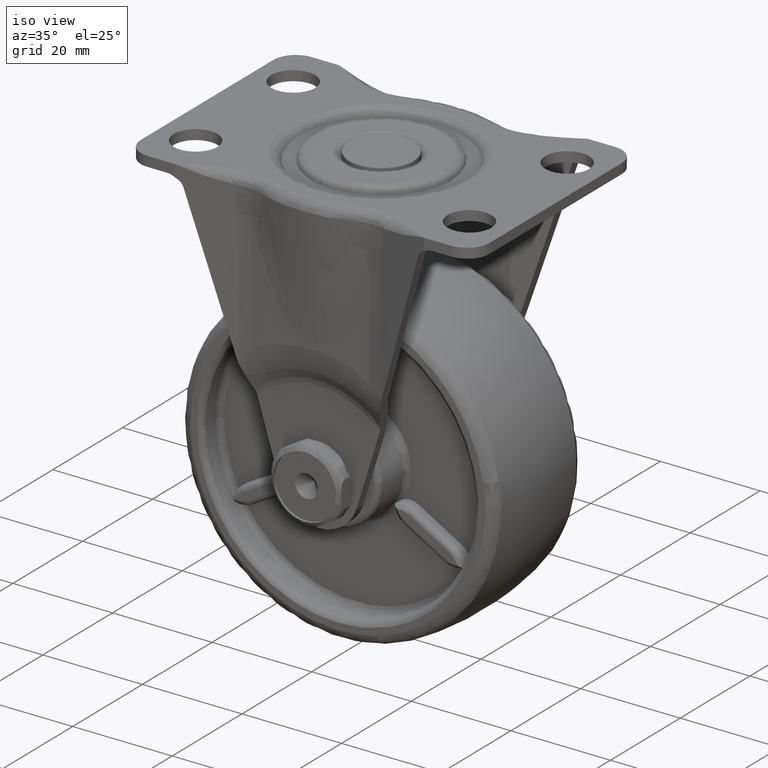
[diagram: clean part render]
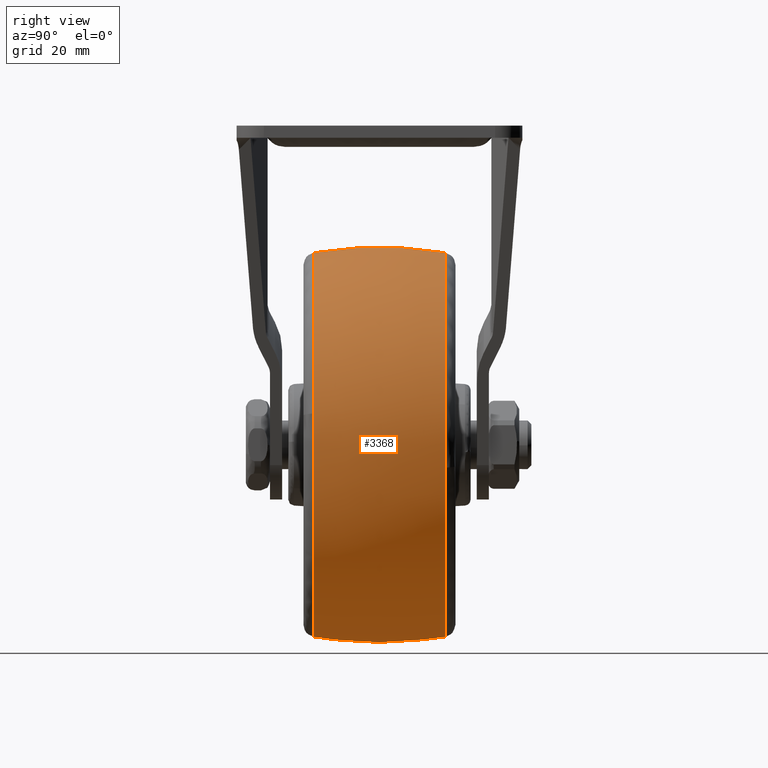
[diagram: tour spotlight — one face highlighted and labeled with its STEP entity id]
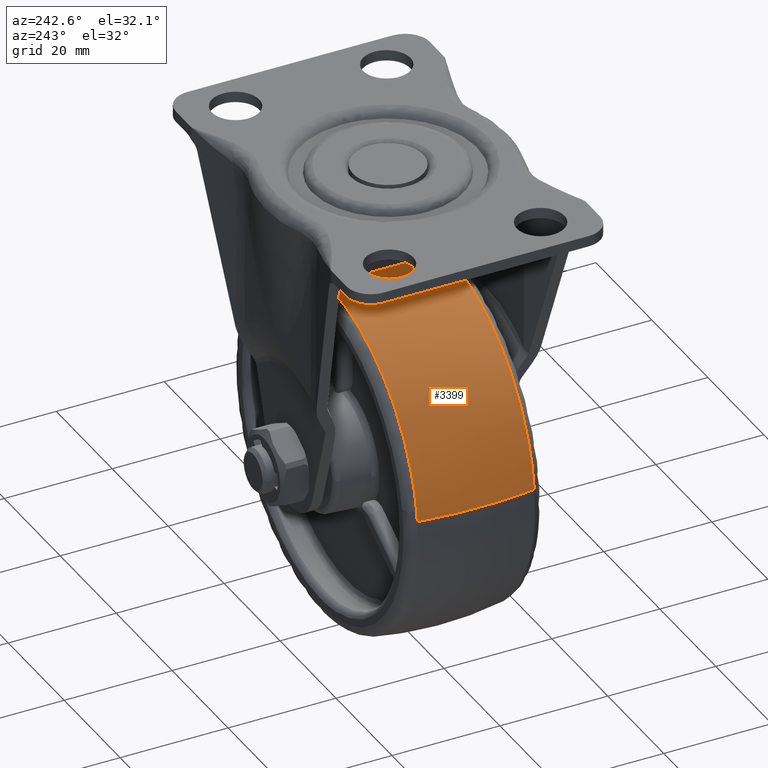
[diagram: tour spotlight — one face highlighted and labeled with its STEP entity id]
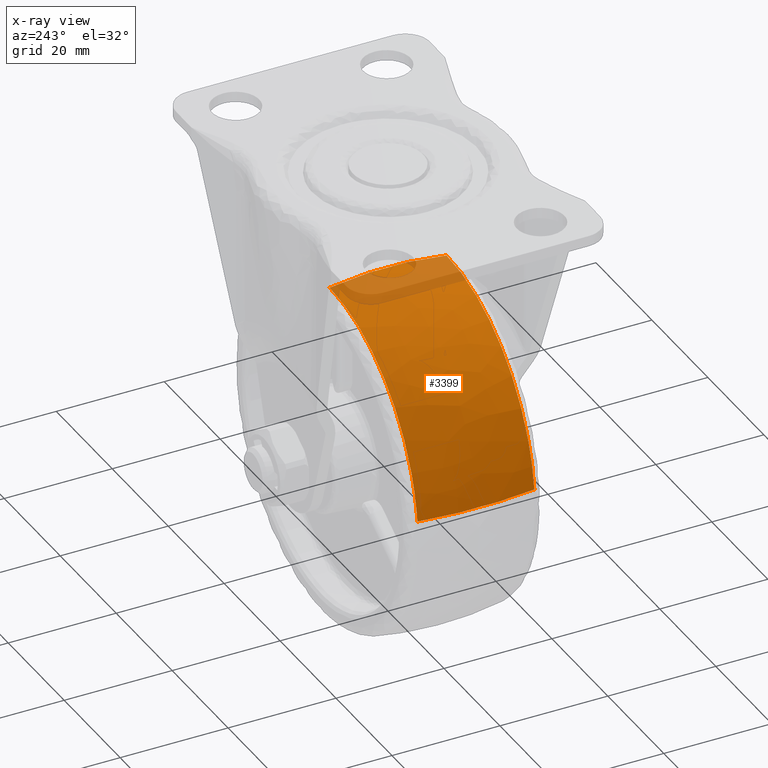
[diagram: x-ray of the same camera — body ghosted, this tour face saturated]
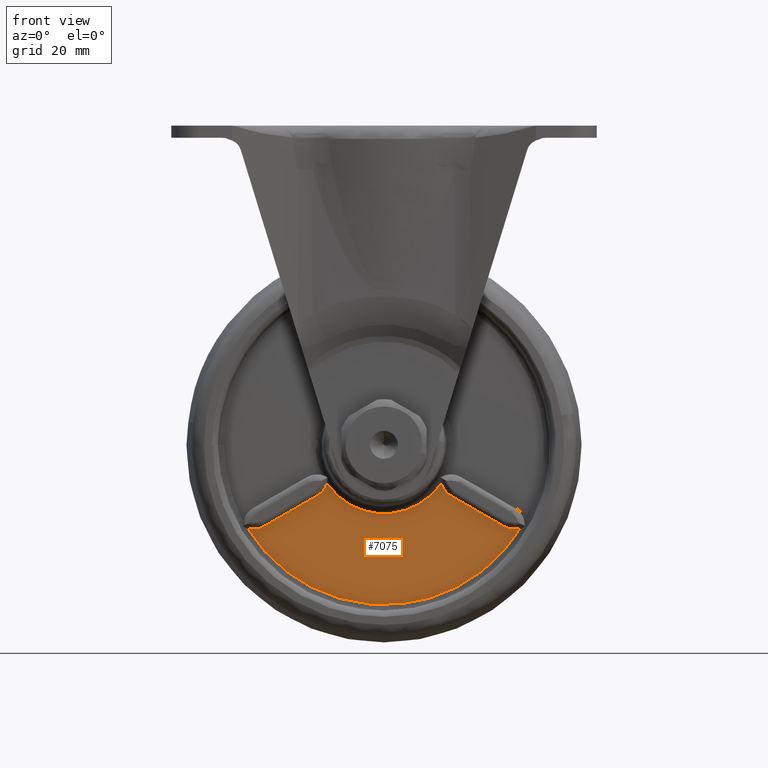
[diagram: tour spotlight — one face highlighted and labeled with its STEP entity id]
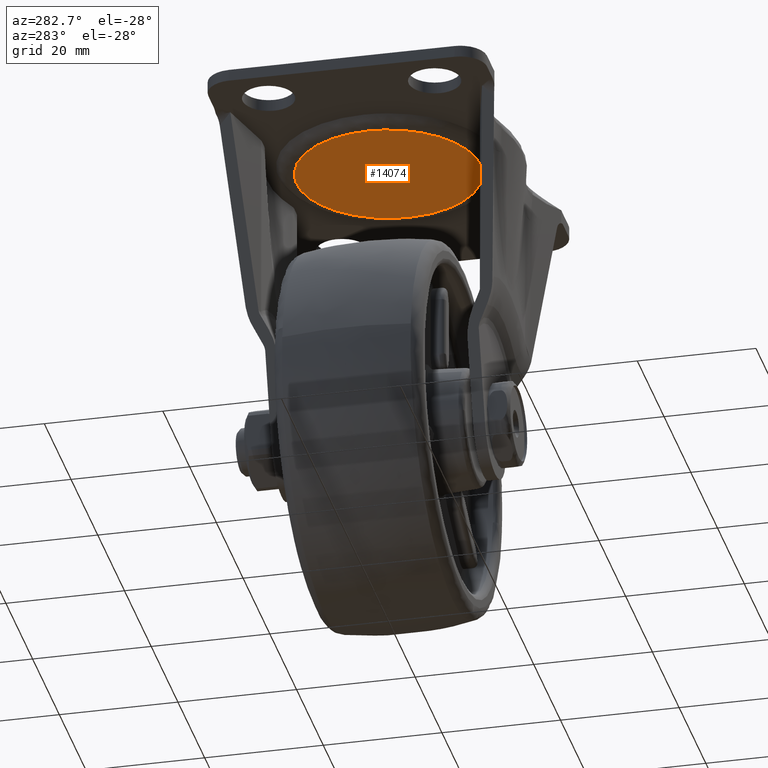
[diagram: tour spotlight — one face highlighted and labeled with its STEP entity id]
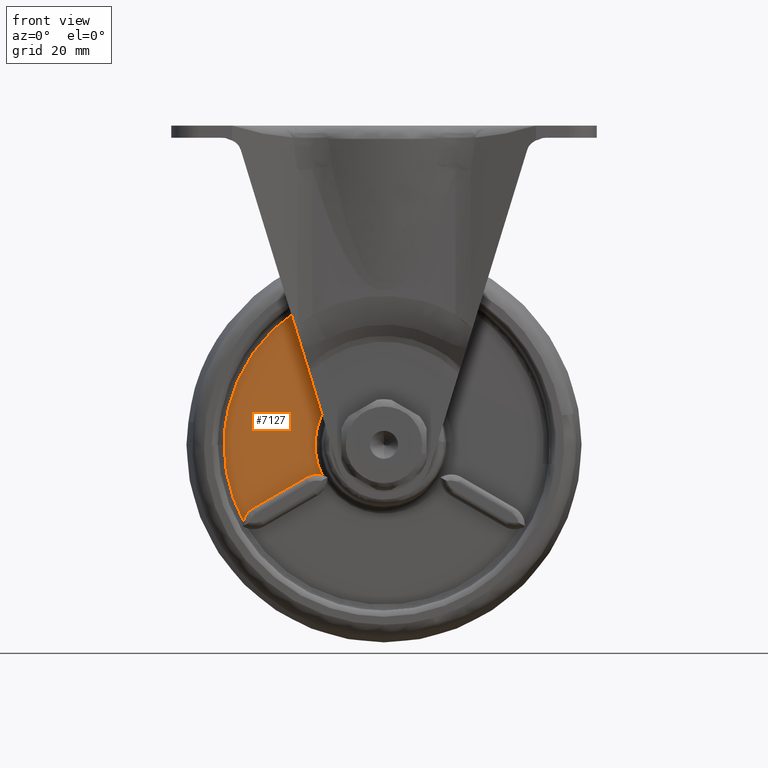
[diagram: tour spotlight — one face highlighted and labeled with its STEP entity id]
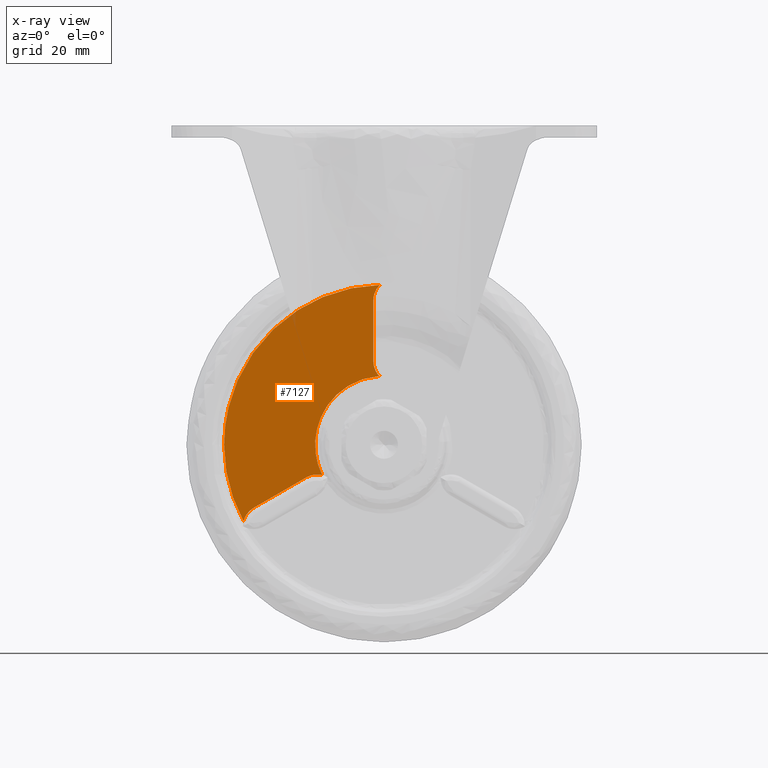
[diagram: x-ray of the same camera — body ghosted, this tour face saturated]
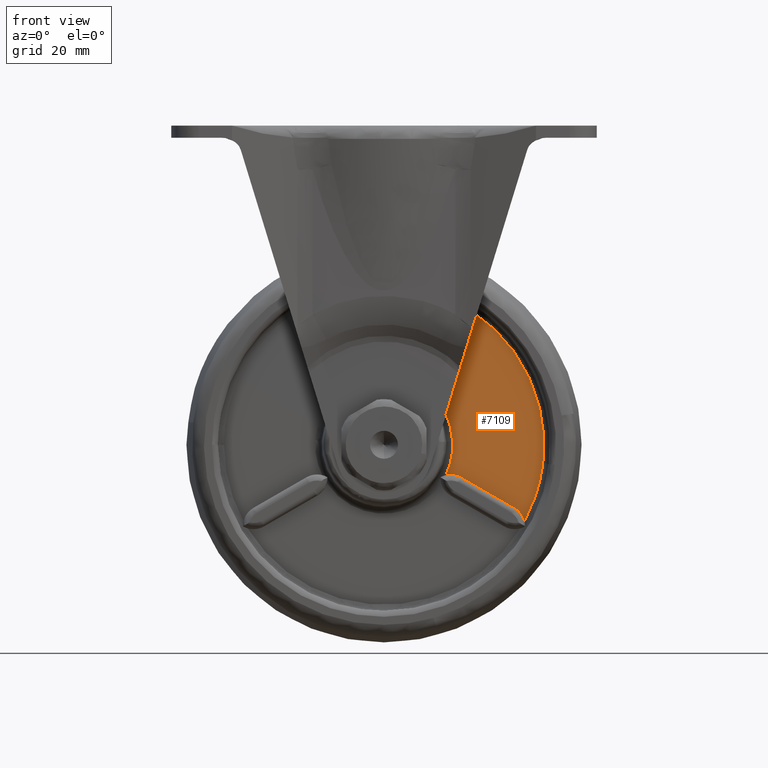
[diagram: tour spotlight — one face highlighted and labeled with its STEP entity id]
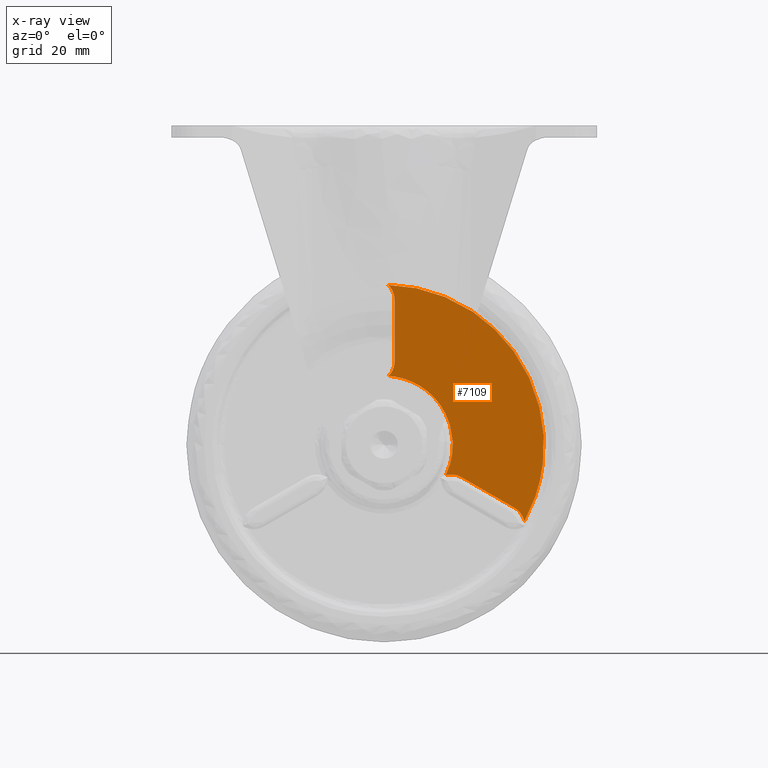
[diagram: x-ray of the same camera — body ghosted, this tour face saturated]
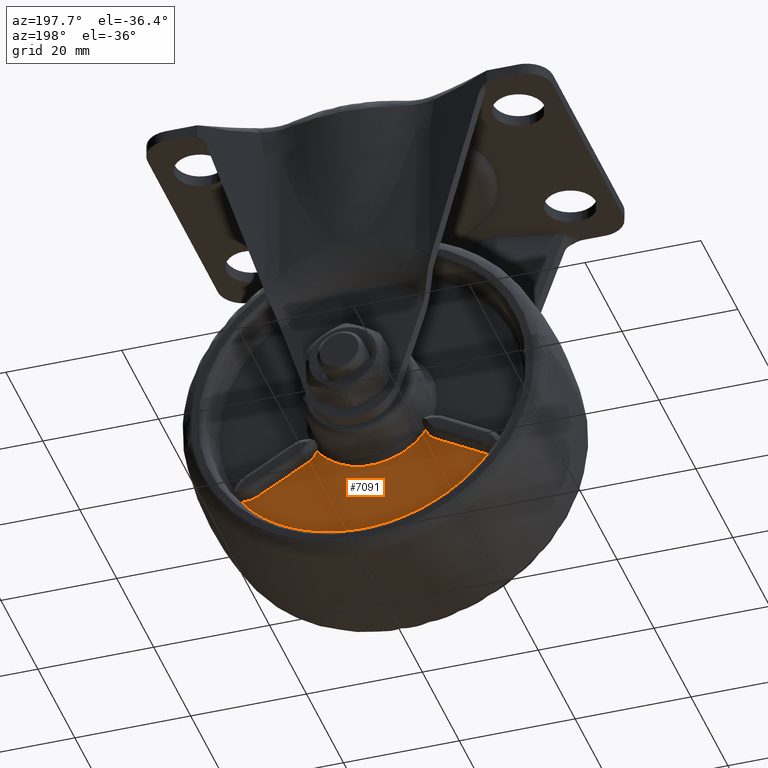
[diagram: tour spotlight — one face highlighted and labeled with its STEP entity id]
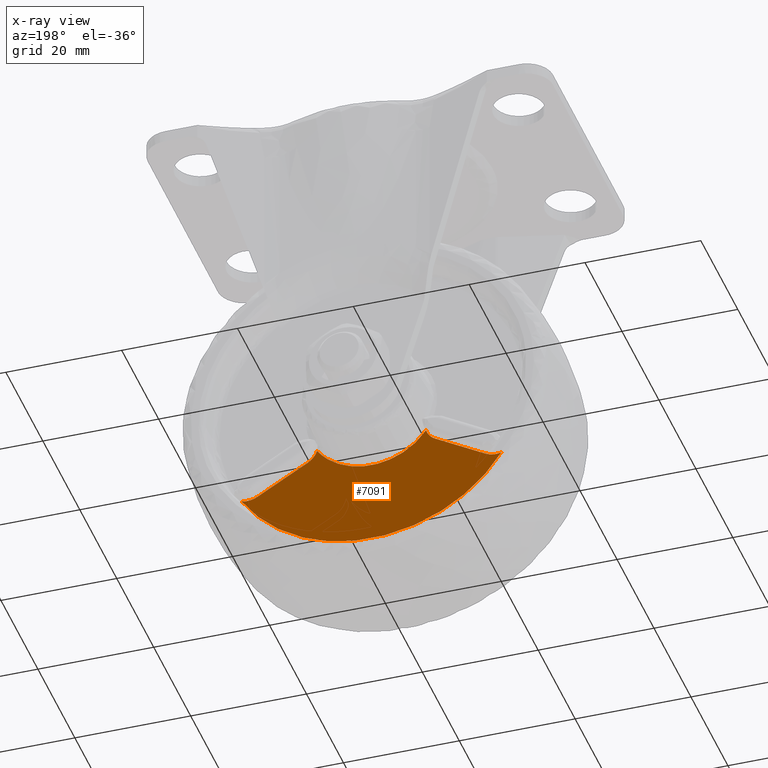
[diagram: x-ray of the same camera — body ghosted, this tour face saturated]
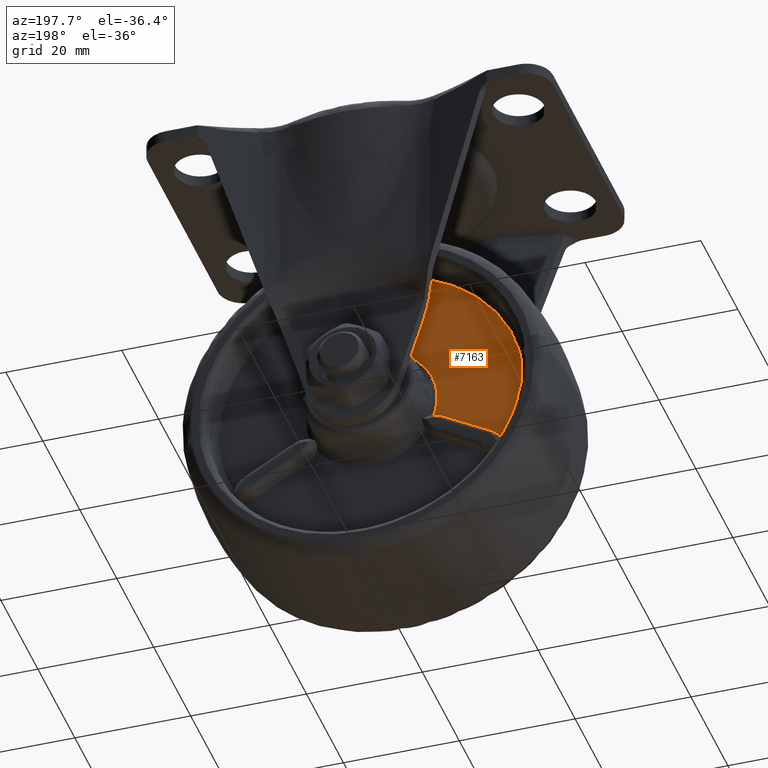
[diagram: tour spotlight — one face highlighted and labeled with its STEP entity id]
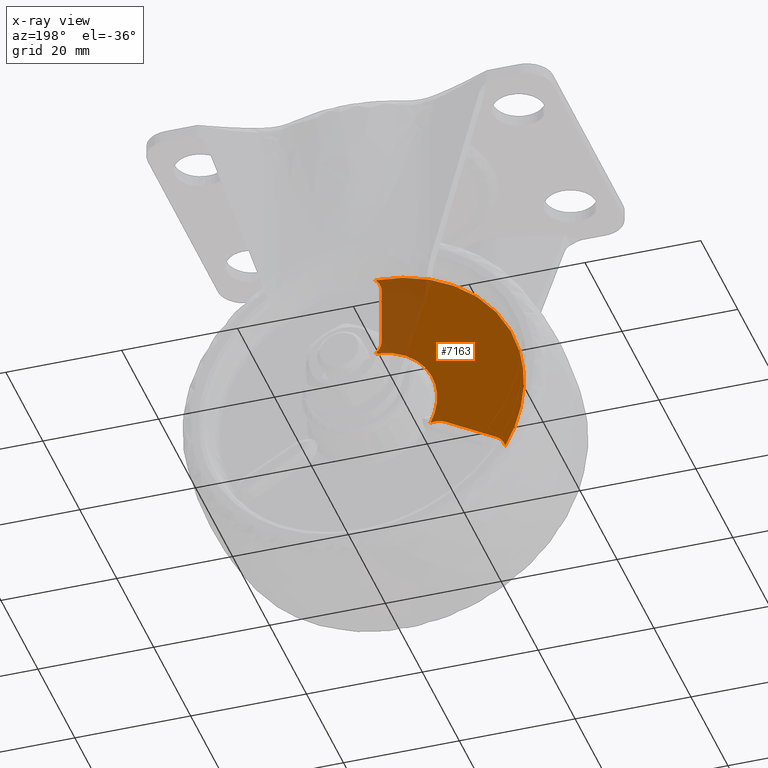
[diagram: x-ray of the same camera — body ghosted, this tour face saturated]
A machine part: a face-by-face anatomy tour. The part has 326 B-rep faces; the first image is the clean iso view, then the 8 largest visible faces are spotlighted one at a time (largest first), each with its STEP entity span.

Face 1 — right view, entity #3368. In plain terms, the highlighted face is a freeform B-spline surface patch.
Definition (entity closure, byte-faithful):
#1556=CARTESIAN_POINT('',(8.702535267300814,-10.833332861515039,-30.368546717402680));
#1557=VERTEX_POINT('',#1556);
#1571=CARTESIAN_POINT('',(31.170263492972179,-10.833322223206240,5.137848899777200));
#1572=VERTEX_POINT('',#1571);
#1573=CARTESIAN_POINT('',(8.702535267300814,-10.833332861515045,-30.368546717402680));
#1574=CARTESIAN_POINT('',(31.590865040641074,-10.833330924856742,-23.809572537121330));
#1575=CARTESIAN_POINT('',(31.590865605973612,-10.833323768179520,0.000001757194016));
#1576=CARTESIAN_POINT('',(31.590865667378690,-10.833322990838187,2.586141321709145));
#1577=CARTESIAN_POINT('',(31.170263492972182,-10.833322223206240,5.137848899777200));
#1585=(BOUNDED_CURVE()B_SPLINE_CURVE(2,(#1573,#1574,#1575,#1576,#1577),.UNSPECIFIED.,.F.,.U.)B_SPLINE_CURVE_WITH_KNOTS((3,2,3),(0.046928271940704,0.250000000000000,0.277993881419789),.UNSPECIFIED.)CURVE()GEOMETRIC_REPRESENTATION_ITEM()RATIONAL_B_SPLINE_CURVE((0.910681109040301,0.762086671674810,1.0,0.967203127855503,0.941751149709031))REPRESENTATION_ITEM(''));
#1586=EDGE_CURVE('',#1557,#1572,#1585,.T.);
#1685=CARTESIAN_POINT('',(0.0,-10.833313973612780,31.590867589296650));
#1686=VERTEX_POINT('',#1685);
#1687=CARTESIAN_POINT('',(31.170263492972182,-10.833322223206240,5.137848899777200));
#1688=CARTESIAN_POINT('',(26.809967380546606,-10.833314090973881,31.590867702051668));
#1689=CARTESIAN_POINT('',(0.0,-10.833313973612780,31.590867589296650));
#1697=(BOUNDED_CURVE()B_SPLINE_CURVE(2,(#1687,#1688,#1689),.UNSPECIFIED.,.F.,.U.)B_SPLINE_CURVE_WITH_KNOTS((3,3),(0.277993881419789,0.500000000000000),.UNSPECIFIED.)CURVE()GEOMETRIC_REPRESENTATION_ITEM()RATIONAL_B_SPLINE_CURVE((0.941751149709031,0.739903653331044,1.0))REPRESENTATION_ITEM(''));
#1698=EDGE_CURVE('',#1572,#1686,#1697,.T.);
#1700=CARTESIAN_POINT('',(-31.379576934925890,-10.833320618820061,3.647601329777594));
#1701=VERTEX_POINT('',#1700);
#1715=CARTESIAN_POINT('',(0.0,-10.833333116737760,-31.590864353523951));
#1716=VERTEX_POINT('',#1715);
#1717=CARTESIAN_POINT('',(-31.379576934925883,-10.833320618820064,3.647601329777595));
#1718=CARTESIAN_POINT('',(-31.590866397802625,-10.833320941155725,1.829920317610218));
#1719=CARTESIAN_POINT('',(-31.590866337027109,-10.833321303130470,0.000000230564898));
#1720=CARTESIAN_POINT('',(-31.590865287827715,-10.833327552089319,-31.590864244919302));
#1721=CARTESIAN_POINT('',(0.0,-10.833333116737760,-31.590864353523951));
#1729=(BOUNDED_CURVE()B_SPLINE_CURVE(2,(#1717,#1718,#1719,#1720,#1721),.UNSPECIFIED.,.F.,.U.)B_SPLINE_CURVE_WITH_KNOTS((3,2,3),(0.730000073961916,0.750000000000000,1.0),.UNSPECIFIED.)CURVE()GEOMETRIC_REPRESENTATION_ITEM()RATIONAL_B_SPLINE_CURVE((0.956886263765692,0.976568629146698,1.0,0.707106781186547,1.0))REPRESENTATION_ITEM(''));
#1730=EDGE_CURVE('',#1701,#1716,#1729,.T.);
#1732=CARTESIAN_POINT('',(0.0,-10.833333116737760,-31.590864353523951));
#1733=CARTESIAN_POINT('',(4.437108150509476,-10.833333116737762,-31.590864353523951));
#1734=CARTESIAN_POINT('',(8.702535267300814,-10.833332861515045,-30.368546717402680));
#1742=(BOUNDED_CURVE()B_SPLINE_CURVE(2,(#1732,#1733,#1734),.UNSPECIFIED.,.F.,.U.)B_SPLINE_CURVE_WITH_KNOTS((3,3),(0.0,0.046928271940704),.UNSPECIFIED.)CURVE()GEOMETRIC_REPRESENTATION_ITEM()RATIONAL_B_SPLINE_CURVE((1.0,0.945020109511737,0.910681109040301))REPRESENTATION_ITEM(''));
#1743=EDGE_CURVE('',#1716,#1557,#1742,.T.);
#1772=CARTESIAN_POINT('',(31.368553281602139,10.833326264621711,-3.741214128252171));
#1773=VERTEX_POINT('',#1772);
#1774=CARTESIAN_POINT('',(0.0,10.833316072437389,31.590867873258389));
#1775=VERTEX_POINT('',#1774);
#1776=CARTESIAN_POINT('',(31.368553281602139,10.833326264621702,-3.741214128252170));
#1777=CARTESIAN_POINT('',(31.590865467695394,10.833325612692795,-1.877211630772801));
#1778=CARTESIAN_POINT('',(31.590865467695401,10.833325077583220,0.000001202781496));
#1779=CARTESIAN_POINT('',(31.590865467695401,10.833316072437391,31.590867873258386));
#1780=CARTESIAN_POINT('',(0.0,10.833316072437389,31.590867873258389));
#1788=(BOUNDED_CURVE()B_SPLINE_CURVE(2,(#1776,#1777,#1778,#1779,#1780),.UNSPECIFIED.,.F.,.U.)B_SPLINE_CURVE_WITH_KNOTS((3,2,3),(0.229495610797390,0.250000000000000,0.500000000000000),.UNSPECIFIED.)CURVE()GEOMETRIC_REPRESENTATION_ITEM()RATIONAL_B_SPLINE_CURVE((0.955895742425114,0.975977613786575,1.0,0.707106781186547,1.0))REPRESENTATION_ITEM(''));
#1789=EDGE_CURVE('',#1773,#1775,#1788,.T.);
#1898=CARTESIAN_POINT('',(0.0,10.833334082729040,-31.590865467695401));
#1899=VERTEX_POINT('',#1898);
#1900=CARTESIAN_POINT('',(0.0,10.833334082729040,-31.590865467695401));
#1901=CARTESIAN_POINT('',(28.047024353543492,10.833334082729039,-31.590865467695405));
#1902=CARTESIAN_POINT('',(31.368553281602139,10.833326264621702,-3.741214128252170));
#1910=(BOUNDED_CURVE()B_SPLINE_CURVE(2,(#1900,#1901,#1902),.UNSPECIFIED.,.F.,.U.)B_SPLINE_CURVE_WITH_KNOTS((3,3),(0.0,0.229495610797390),.UNSPECIFIED.)CURVE()GEOMETRIC_REPRESENTATION_ITEM()RATIONAL_B_SPLINE_CURVE((1.0,0.731129167399972,0.955895742425114))REPRESENTATION_ITEM(''));
#1911=EDGE_CURVE('',#1899,#1773,#1910,.T.);
#1913=CARTESIAN_POINT('',(-31.379577210503381,10.833322767455529,3.647601345431784));
#1914=VERTEX_POINT('',#1913);
#1915=CARTESIAN_POINT('',(-31.379577210503378,10.833322767455529,3.647601345431785));
#1916=CARTESIAN_POINT('',(-31.590866700438038,10.833323059289425,1.829920279653145));
#1917=CARTESIAN_POINT('',(-31.590866663789139,10.833323387011490,0.000000139035429));
#1918=CARTESIAN_POINT('',(-31.590866031100038,10.833329044648242,-31.590865402204543));
#1919=CARTESIAN_POINT('',(0.0,10.833334082729040,-31.590865467695401));
#1927=(BOUNDED_CURVE()B_SPLINE_CURVE(2,(#1915,#1916,#1917,#1918,#1919),.UNSPECIFIED.,.F.,.U.)B_SPLINE_CURVE_WITH_KNOTS((3,2,3),(0.730000074049033,0.750000000000000,1.0),.UNSPECIFIED.)CURVE()GEOMETRIC_REPRESENTATION_ITEM()RATIONAL_B_SPLINE_CURVE((0.956886263937159,0.976568629248762,1.0,0.707106781186547,1.0))REPRESENTATION_ITEM(''));
#1928=EDGE_CURVE('',#1914,#1899,#1927,.T.);
#3276=CARTESIAN_POINT('',(-31.186855228915665,-11.924459672506410,3.625212158111696));
#3277=CARTESIAN_POINT('',(-32.282628353075225,-6.013257012158165,3.752586656857315));
#3278=CARTESIAN_POINT('',(-32.282628353075225,-5.969956E-015,3.752586656857316));
#3279=CARTESIAN_POINT('',(-32.282628353075225,6.013257012158148,3.752586656857315));
#3280=CARTESIAN_POINT('',(-31.186855228915665,11.924459672506389,3.625212158111696));
#3281=CARTESIAN_POINT('',(-31.396848603970838,-11.924459672506407,1.818688097934163));
#3282=CARTESIAN_POINT('',(-32.500000000000000,-6.013257012158165,1.882589043519000));
#3283=CARTESIAN_POINT('',(-32.500000000000000,-5.969956E-015,1.882589043519000));
#3284=CARTESIAN_POINT('',(-32.500000000000000,6.013257012158148,1.882589043519000));
#3285=CARTESIAN_POINT('',(-31.396848603970838,11.924459672506385,1.818688097934163));
#3286=CARTESIAN_POINT('',(-31.396848603970827,-11.924459672506412,0.0));
#3287=CARTESIAN_POINT('',(-32.499999999999993,-6.013257012158166,0.0));
#3288=CARTESIAN_POINT('',(-32.500000000000000,-5.969956E-015,0.0));
#3289=CARTESIAN_POINT('',(-32.499999999999993,6.013257012158148,0.0));
#3290=CARTESIAN_POINT('',(-31.396848603970827,11.924459672506392,0.0));
#3291=CARTESIAN_POINT('',(-31.396848603970824,-11.924459672506414,-31.396848603970824));
#3292=CARTESIAN_POINT('',(-32.500000000000000,-6.013257012158166,-32.500000000000000));
#3293=CARTESIAN_POINT('',(-32.500000000000007,-5.969956E-015,-32.500000000000007));
#3294=CARTESIAN_POINT('',(-32.500000000000000,6.013257012158150,-32.500000000000000));
#3295=CARTESIAN_POINT('',(-31.396848603970824,11.924459672506392,-31.396848603970824));
#3296=CARTESIAN_POINT('',(0.0,-11.924459672506412,-31.396848603970827));
#3297=CARTESIAN_POINT('',(0.0,-6.013257012158166,-32.499999999999993));
#3298=CARTESIAN_POINT('',(0.0,-5.969956E-015,-32.500000000000000));
#3299=CARTESIAN_POINT('',(0.0,6.013257012158148,-32.499999999999993));
#3300=CARTESIAN_POINT('',(0.0,11.924459672506392,-31.396848603970827));
#3301=CARTESIAN_POINT('',(31.396848603970824,-11.924459672506414,-31.396848603970824));
#3302=CARTESIAN_POINT('',(32.500000000000000,-6.013257012158166,-32.500000000000000));
#3303=CARTESIAN_POINT('',(32.500000000000007,-5.969956E-015,-32.500000000000007));
#3304=CARTESIAN_POINT('',(32.500000000000000,6.013257012158150,-32.500000000000000));
#3305=CARTESIAN_POINT('',(31.396848603970824,11.924459672506392,-31.396848603970824));
#3306=CARTESIAN_POINT('',(31.396848603970827,-11.924459672506412,0.0));
#3307=CARTESIAN_POINT('',(32.499999999999993,-6.013257012158166,0.0));
#3308=CARTESIAN_POINT('',(32.500000000000000,-5.969956E-015,0.0));
#3309=CARTESIAN_POINT('',(32.499999999999993,6.013257012158148,0.0));
#3310=CARTESIAN_POINT('',(31.396848603970827,11.924459672506392,0.0));
#3311=CARTESIAN_POINT('',(31.396848603970824,-11.924459672506414,31.396848603970824));
#3312=CARTESIAN_POINT('',(32.500000000000000,-6.013257012158166,32.500000000000000));
#3313=CARTESIAN_POINT('',(32.500000000000007,-5.969956E-015,32.500000000000007));
#3314=CARTESIAN_POINT('',(32.500000000000000,6.013257012158150,32.500000000000000));
#3315=CARTESIAN_POINT('',(31.396848603970824,11.924459672506392,31.396848603970824));
#3316=CARTESIAN_POINT('',(0.0,-11.924459672506412,31.396848603970827));
#3317=CARTESIAN_POINT('',(0.0,-6.013257012158166,32.499999999999993));
#3318=CARTESIAN_POINT('',(0.0,-5.969956E-015,32.500000000000000));
#3319=CARTESIAN_POINT('',(0.0,6.013257012158148,32.499999999999993));
#3320=CARTESIAN_POINT('',(0.0,11.924459672506392,31.396848603970827));
#3328=(BOUNDED_SURFACE()B_SPLINE_SURFACE(2,2,((#3276,#3281,#3286,#3291,#3296,#3301,#3306,#3311,#3316),(#3277,#3282,#3287,#3292,#3297,#3302,#3307,#3312,#3317),(#3278,#3283,#3288,#3293,#3298,#3303,#3308,#3313,#3318),(#3279,#3284,#3289,#3294,#3299,#3304,#3309,#3314,#3319),(#3280,#3285,#3290,#3295,#3300,#3305,#3310,#3315,#3320)),.UNSPECIFIED.,.F.,.F.,.U.)B_SPLINE_SURFACE_WITH_KNOTS((3,2,3),(3,2,2,2,3),(0.0,12.220048198201690,24.440096396403380),(0.0,4.307820149998688,58.155583258501053,112.003346367003400,165.851109475505810),.UNSPECIFIED.)GEOMETRIC_REPRESENTATION_ITEM()RATIONAL_B_SPLINE_SURFACE(((0.918952135755644,0.937854283354630,0.960356839125918,0.679074833304815,0.960356839125918,0.679074833304815,0.960356839125918,0.679074833304815,0.960356839125918),(0.933740181740879,0.952946508216041,0.975811181682673,0.690002703725476,0.975811181682673,0.690002703725476,0.975811181682673,0.690002703725476,0.975811181682673),(0.956886126402807,0.976568547383107,1.0,0.707106781186548,1.0,0.707106781186548,1.0,0.707106781186548,1.0),(0.933740181740879,0.952946508216041,0.975811181682673,0.690002703725476,0.975811181682673,0.690002703725476,0.975811181682673,0.690002703725476,0.975811181682673),(0.918952135755644,0.937854283354630,0.960356839125918,0.679074833304815,0.960356839125918,0.679074833304815,0.960356839125918,0.679074833304815,0.960356839125918)))REPRESENTATION_ITEM('')SURFACE());
#3329=ORIENTED_EDGE('',*,*,#1730,.F.);
#3330=CARTESIAN_POINT('',(-31.379576934925890,-10.833320618820064,3.647601329777594));
#3331=CARTESIAN_POINT('',(-32.282630008990417,-5.454807579626859,3.752573746417169));
#3332=CARTESIAN_POINT('',(-32.282630164757215,0.000000052482723,3.752573760400076));
#3333=CARTESIAN_POINT('',(-32.282630320524035,5.454808728220561,3.752573774382987));
#3334=CARTESIAN_POINT('',(-31.379577210503381,10.833322767455527,3.647601345431784));
#3342=(BOUNDED_CURVE()B_SPLINE_CURVE(2,(#3330,#3331,#3332,#3333,#3334),.UNSPECIFIED.,.F.,.U.)B_SPLINE_CURVE_WITH_KNOTS((3,2,3),(0.417925438466249,0.500000000000000,0.582074576891143),.UNSPECIFIED.)CURVE()GEOMETRIC_REPRESENTATION_ITEM()RATIONAL_B_SPLINE_CURVE((0.921707394730561,0.935842458112679,0.956886118190660,0.935842454175092,0.921707389440793))REPRESENTATION_ITEM(''));
#3343=EDGE_CURVE('',#1701,#1914,#3342,.T.);
#3344=ORIENTED_EDGE('',*,*,#3343,.T.);
#3345=ORIENTED_EDGE('',*,*,#1928,.T.);
#3346=ORIENTED_EDGE('',*,*,#1911,.T.);
#3347=ORIENTED_EDGE('',*,*,#1789,.T.);
#3348=CARTESIAN_POINT('',(0.0,-10.833313973612782,31.590867589296646));
#3349=CARTESIAN_POINT('',(0.0,-5.454804212217034,32.500000000000000));
#3350=CARTESIAN_POINT('',(0.0,-5.969956E-015,32.500000000000000));
#3351=CARTESIAN_POINT('',(0.0,5.454805230408670,32.499999999999993));
#3352=CARTESIAN_POINT('',(0.0,10.833316072437391,31.590867873258382));
#3360=(BOUNDED_CURVE()B_SPLINE_CURVE(2,(#3348,#3349,#3350,#3351,#3352),.UNSPECIFIED.,.F.,.U.)B_SPLINE_CURVE_WITH_KNOTS((3,2,3),(0.417925488402422,0.500000000000000,0.582074526580660),.UNSPECIFIED.)CURVE()GEOMETRIC_REPRESENTATION_ITEM()RATIONAL_B_SPLINE_CURVE((0.963236266478213,0.978008200898250,1.0,0.978008196883545,0.963236261084843))REPRESENTATION_ITEM(''));
#3361=EDGE_CURVE('',#1686,#1775,#3360,.T.);
#3362=ORIENTED_EDGE('',*,*,#3361,.F.);
#3363=ORIENTED_EDGE('',*,*,#1698,.F.);
#3364=ORIENTED_EDGE('',*,*,#1586,.F.);
#3365=ORIENTED_EDGE('',*,*,#1743,.F.);
#3366=EDGE_LOOP('',(#3329,#3344,#3345,#3346,#3347,#3362,#3363,#3364,#3365));
#3367=FACE_OUTER_BOUND('',#3366,.T.);
#3368=ADVANCED_FACE('',(#3367),#3328,.T.);

Face 2 — auxiliary view, entity #3399. An x-ray twin of the same camera follows (body ghosted, this face saturated) — the face is partly hidden behind the body. In plain terms, the highlighted face is a freeform B-spline surface patch.
Definition (entity closure, byte-faithful):
#1685=CARTESIAN_POINT('',(0.0,-10.833313973612780,31.590867589296650));
#1686=VERTEX_POINT('',#1685);
#1700=CARTESIAN_POINT('',(-31.379576934925890,-10.833320618820061,3.647601329777594));
#1701=VERTEX_POINT('',#1700);
#1702=CARTESIAN_POINT('',(0.0,-10.833313973612780,31.590867589296650));
#1703=CARTESIAN_POINT('',(-28.131415961045597,-10.833317296216421,31.590866093370558));
#1704=CARTESIAN_POINT('',(-31.379576934925883,-10.833320618820064,3.647601329777595));
#1712=(BOUNDED_CURVE()B_SPLINE_CURVE(2,(#1702,#1703,#1704),.UNSPECIFIED.,.F.,.U.)B_SPLINE_CURVE_WITH_KNOTS((3,3),(0.500000000000000,0.730000073961916),.UNSPECIFIED.)CURVE()GEOMETRIC_REPRESENTATION_ITEM()RATIONAL_B_SPLINE_CURVE((1.0,0.730538152039850,0.956886263765692))REPRESENTATION_ITEM(''));
#1713=EDGE_CURVE('',#1686,#1701,#1712,.T.);
#1774=CARTESIAN_POINT('',(0.0,10.833316072437389,31.590867873258389));
#1775=VERTEX_POINT('',#1774);
#1838=CARTESIAN_POINT('',(-31.103240999014989,10.833322593524111,5.529130187627395));
#1839=VERTEX_POINT('',#1838);
#1853=CARTESIAN_POINT('',(0.0,10.833316072437389,31.590867873258389));
#1854=CARTESIAN_POINT('',(-26.470323204719318,10.833319222283999,31.590866810700220));
#1855=CARTESIAN_POINT('',(-31.103240999015000,10.833322593524109,5.529130187627397));
#1863=(BOUNDED_CURVE()B_SPLINE_CURVE(2,(#1853,#1854,#1855),.UNSPECIFIED.,.F.,.U.)B_SPLINE_CURVE_WITH_KNOTS((3,3),(0.500000000000000,0.719918253253040),.UNSPECIFIED.)CURVE()GEOMETRIC_REPRESENTATION_ITEM()RATIONAL_B_SPLINE_CURVE((1.0,0.742349739715541,0.937995440966676))REPRESENTATION_ITEM(''));
#1864=EDGE_CURVE('',#1775,#1839,#1863,.T.);
#1913=CARTESIAN_POINT('',(-31.379577210503381,10.833322767455529,3.647601345431784));
#1914=VERTEX_POINT('',#1913);
#1930=CARTESIAN_POINT('',(-31.103240999014989,10.833322593524109,5.529130187627395));
#1931=CARTESIAN_POINT('',(-31.269737926721877,10.833322654256696,4.592526359896142));
#1932=CARTESIAN_POINT('',(-31.379577210503378,10.833322767455529,3.647601345431785));
#1940=(BOUNDED_CURVE()B_SPLINE_CURVE(2,(#1930,#1931,#1932),.UNSPECIFIED.,.F.,.U.)B_SPLINE_CURVE_WITH_KNOTS((3,3),(0.719918253253039,0.730000074049033),.UNSPECIFIED.)CURVE()GEOMETRIC_REPRESENTATION_ITEM()RATIONAL_B_SPLINE_CURVE((0.937995440966675,0.946964523206751,0.956886263937159))REPRESENTATION_ITEM(''));
#1941=EDGE_CURVE('',#1839,#1914,#1940,.T.);
#3330=CARTESIAN_POINT('',(-31.379576934925890,-10.833320618820064,3.647601329777594));
#3331=CARTESIAN_POINT('',(-32.282630008990417,-5.454807579626859,3.752573746417169));
#3332=CARTESIAN_POINT('',(-32.282630164757215,0.000000052482723,3.752573760400076));
#3333=CARTESIAN_POINT('',(-32.282630320524035,5.454808728220561,3.752573774382987));
#3334=CARTESIAN_POINT('',(-31.379577210503381,10.833322767455527,3.647601345431784));
#3342=(BOUNDED_CURVE()B_SPLINE_CURVE(2,(#3330,#3331,#3332,#3333,#3334),.UNSPECIFIED.,.F.,.U.)B_SPLINE_CURVE_WITH_KNOTS((3,2,3),(0.417925438466249,0.500000000000000,0.582074576891143),.UNSPECIFIED.)CURVE()GEOMETRIC_REPRESENTATION_ITEM()RATIONAL_B_SPLINE_CURVE((0.921707394730561,0.935842458112679,0.956886118190660,0.935842454175092,0.921707389440793))REPRESENTATION_ITEM(''));
#3343=EDGE_CURVE('',#1701,#1914,#3342,.T.);
#3348=CARTESIAN_POINT('',(0.0,-10.833313973612782,31.590867589296646));
#3349=CARTESIAN_POINT('',(0.0,-5.454804212217034,32.500000000000000));
#3350=CARTESIAN_POINT('',(0.0,-5.969956E-015,32.500000000000000));
#3351=CARTESIAN_POINT('',(0.0,5.454805230408670,32.499999999999993));
#3352=CARTESIAN_POINT('',(0.0,10.833316072437391,31.590867873258382));
#3360=(BOUNDED_CURVE()B_SPLINE_CURVE(2,(#3348,#3349,#3350,#3351,#3352),.UNSPECIFIED.,.F.,.U.)B_SPLINE_CURVE_WITH_KNOTS((3,2,3),(0.417925488402422,0.500000000000000,0.582074526580660),.UNSPECIFIED.)CURVE()GEOMETRIC_REPRESENTATION_ITEM()RATIONAL_B_SPLINE_CURVE((0.963236266478213,0.978008200898250,1.0,0.978008196883545,0.963236261084843))REPRESENTATION_ITEM(''));
#3361=EDGE_CURVE('',#1686,#1775,#3360,.T.);
#3369=CARTESIAN_POINT('',(0.0,-11.924446784763530,31.396851009086067));
#3370=CARTESIAN_POINT('',(0.0,-6.013250400934876,32.500000000000000));
#3371=CARTESIAN_POINT('',(0.0,-5.969956E-015,32.500000000000000));
#3372=CARTESIAN_POINT('',(0.0,6.013252435313865,32.500000000000000));
#3373=CARTESIAN_POINT('',(0.0,11.924450750527921,31.396850268993965));
#3374=CARTESIAN_POINT('',(-27.958635255691192,-11.924446784763528,31.396851009086070));
#3375=CARTESIAN_POINT('',(-28.940980276875674,-6.013250400934876,32.499999999999993));
#3376=CARTESIAN_POINT('',(-28.940980276875663,-5.969956E-015,32.500000000000000));
#3377=CARTESIAN_POINT('',(-28.940980276875663,6.013252435313867,32.499999999999993));
#3378=CARTESIAN_POINT('',(-27.958634596645318,11.924450750527926,31.396850268993958));
#3379=CARTESIAN_POINT('',(-31.186857528526339,-11.924446784763530,3.625213205061081));
#3380=CARTESIAN_POINT('',(-32.282628260515160,-6.013250400934875,3.752587453129896));
#3381=CARTESIAN_POINT('',(-32.282628260515168,-5.969956E-015,3.752587453129897));
#3382=CARTESIAN_POINT('',(-32.282628260515160,6.013252435313865,3.752587453129897));
#3383=CARTESIAN_POINT('',(-31.186856793384226,11.924450750527924,3.625213119606916));
#3391=(BOUNDED_SURFACE()B_SPLINE_SURFACE(2,2,((#3369,#3374,#3379),(#3370,#3375,#3380),(#3371,#3376,#3381),(#3372,#3377,#3382),(#3373,#3378,#3383)),.UNSPECIFIED.,.F.,.F.,.U.)B_SPLINE_SURFACE_WITH_KNOTS((3,2,3),(3,3),(0.0,12.220034795850101,24.440073625931699),(0.0,49.485603581165577),.UNSPECIFIED.)GEOMETRIC_REPRESENTATION_ITEM()RATIONAL_B_SPLINE_SURFACE(((0.960356872286224,0.701577417995374,0.918952159599688),(0.975811207633578,0.712867400920181,0.933740198559434),(1.0,0.730538238691624,0.956886118190660),(0.975811199648070,0.712867395086461,0.933740190918213),(0.960356862082266,0.701577410540993,0.918952149835662)))REPRESENTATION_ITEM('')SURFACE());
#3392=ORIENTED_EDGE('',*,*,#1713,.F.);
#3393=ORIENTED_EDGE('',*,*,#3361,.T.);
#3394=ORIENTED_EDGE('',*,*,#1864,.T.);
#3395=ORIENTED_EDGE('',*,*,#1941,.T.);
#3396=ORIENTED_EDGE('',*,*,#3343,.F.);
#3397=EDGE_LOOP('',(#3392,#3393,#3394,#3395,#3396));
#3398=FACE_OUTER_BOUND('',#3397,.T.);
#3399=ADVANCED_FACE('',(#3398),#3391,.T.);

Face 3 — front view, entity #7075. In plain terms, the highlighted face is a freeform B-spline surface patch.
Definition (entity closure, byte-faithful):
#2363=CARTESIAN_POINT('',(-9.403913675450729,-7.500000000000000,-6.321183381284570));
#2364=VERTEX_POINT('',#2363);
#2378=CARTESIAN_POINT('',(9.403913675450719,-7.500000000000000,-6.321183381284580));
#2379=VERTEX_POINT('',#2378);
#2380=CARTESIAN_POINT('',(-9.403913675450731,-7.500000000000000,-6.321183381284572));
#2381=CARTESIAN_POINT('',(-6.036400881561145,-7.500000000000000,-11.330973115984239));
#2382=CARTESIAN_POINT('',(0.0,-7.500000000000000,-11.330973115984239));
#2383=CARTESIAN_POINT('',(6.036400881561137,-7.500000000000000,-11.330973115984239));
#2384=CARTESIAN_POINT('',(9.403913675450722,-7.500000000000000,-6.321183381284587));
#2392=(BOUNDED_CURVE()B_SPLINE_CURVE(2,(#2380,#2381,#2382,#2383,#2384),.UNSPECIFIED.,.F.,.U.)B_SPLINE_CURVE_WITH_KNOTS((3,2,3),(0.0,0.500000000000000,1.0),.UNSPECIFIED.)CURVE()GEOMETRIC_REPRESENTATION_ITEM()RATIONAL_B_SPLINE_CURVE((1.0,0.882572278414859,1.0,0.882572278414859,1.0))REPRESENTATION_ITEM(''));
#2393=EDGE_CURVE('',#2364,#2379,#2392,.T.);
#2716=CARTESIAN_POINT('',(22.430716310824899,-7.500000000000000,-13.731457067015681));
#2717=VERTEX_POINT('',#2716);
#2727=CARTESIAN_POINT('',(-22.430716310824899,-7.500000000000000,-13.731457067015659));
#2728=VERTEX_POINT('',#2727);
#2729=CARTESIAN_POINT('',(-22.430716310824899,-7.500000000000000,-13.731457067015670));
#2730=CARTESIAN_POINT('',(-14.736606521541333,-7.500000000000000,-26.299998999999989));
#2731=CARTESIAN_POINT('',(0.0,-7.500000000000000,-26.299999000000000));
#2732=CARTESIAN_POINT('',(14.736606521541333,-7.500000000000000,-26.299998999999989));
#2733=CARTESIAN_POINT('',(22.430716310824899,-7.500000000000000,-13.731457067015681));
#2741=(BOUNDED_CURVE()B_SPLINE_CURVE(2,(#2729,#2730,#2731,#2732,#2733),.UNSPECIFIED.,.F.,.U.)B_SPLINE_CURVE_WITH_KNOTS((3,2,3),(0.0,0.500000000000000,1.0),.UNSPECIFIED.)CURVE()GEOMETRIC_REPRESENTATION_ITEM()RATIONAL_B_SPLINE_CURVE((1.0,0.872384277018698,1.0,0.872384277018698,1.0))REPRESENTATION_ITEM(''));
#2742=EDGE_CURVE('',#2728,#2717,#2741,.T.);
#6351=CARTESIAN_POINT('',(-11.016472383520560,-7.500000000000000,-8.381093672136132));
#6352=VERTEX_POINT('',#6351);
#6359=CARTESIAN_POINT('',(-19.709477703954349,-7.500000000000000,-13.400002633955401));
#6360=VERTEX_POINT('',#6359);
#6366=CARTESIAN_POINT('',(-19.709477703954349,-7.500000000000000,-13.400002633955401));
#6367=CARTESIAN_POINT('',(-11.016472383520560,-7.500000000000000,-8.381093672136132));
#6368=QUASI_UNIFORM_CURVE('',1,(#6366,#6367),.UNSPECIFIED.,.F.,.U.);
#6369=EDGE_CURVE('',#6360,#6352,#6368,.T.);
#6423=CARTESIAN_POINT('',(-11.016472383520560,-7.500000000000000,-8.381093672136132));
#6424=CARTESIAN_POINT('',(-9.795213129107321,-7.500000000000000,-7.675997920004082));
#6425=CARTESIAN_POINT('',(-9.403913675450729,-7.500000000000000,-6.321183381284570));
#6433=(BOUNDED_CURVE()B_SPLINE_CURVE(2,(#6423,#6424,#6425),.UNSPECIFIED.,.F.,.U.)CURVE()GEOMETRIC_REPRESENTATION_ITEM()QUASI_UNIFORM_CURVE()RATIONAL_B_SPLINE_CURVE((1.0,0.927542628184499,1.0))REPRESENTATION_ITEM(''));
#6434=EDGE_CURVE('',#6352,#2364,#6433,.T.);
#6530=CARTESIAN_POINT('',(-22.430716310824909,-7.500000000000000,-13.731457067015690));
#6531=CARTESIAN_POINT('',(-20.999560681228594,-7.500000000000000,-14.144832601243760));
#6532=CARTESIAN_POINT('',(-19.709477703954359,-7.500000000000000,-13.400002633955390));
#6540=(BOUNDED_CURVE()B_SPLINE_CURVE(2,(#6530,#6531,#6532),.UNSPECIFIED.,.F.,.U.)CURVE()GEOMETRIC_REPRESENTATION_ITEM()QUASI_UNIFORM_CURVE()RATIONAL_B_SPLINE_CURVE((1.0,0.920126415486014,1.0))REPRESENTATION_ITEM(''));
#6541=EDGE_CURVE('',#2728,#6360,#6540,.T.);
#6807=CARTESIAN_POINT('',(19.705137998392601,-7.500000000000000,-13.397492957438280));
#6808=VERTEX_POINT('',#6807);
#6815=CARTESIAN_POINT('',(11.016472383520560,-7.500000000000000,-8.381089525793248));
#6816=VERTEX_POINT('',#6815);
#6822=CARTESIAN_POINT('',(11.016472383520560,-7.500000000000000,-8.381089525793248));
#6823=CARTESIAN_POINT('',(19.705137998392601,-7.500000000000000,-13.397492957438280));
#6824=QUASI_UNIFORM_CURVE('',1,(#6822,#6823),.UNSPECIFIED.,.F.,.U.);
#6825=EDGE_CURVE('',#6816,#6808,#6824,.T.);
#6886=CARTESIAN_POINT('',(9.403913675450713,-7.500000000000000,-6.321183381284585));
#6887=CARTESIAN_POINT('',(9.795213692490512,-7.500000000000000,-7.675995207577033));
#6888=CARTESIAN_POINT('',(11.016472383520560,-7.500000000000000,-8.381089525793248));
#6896=(BOUNDED_CURVE()B_SPLINE_CURVE(2,(#6886,#6887,#6888),.UNSPECIFIED.,.F.,.U.)CURVE()GEOMETRIC_REPRESENTATION_ITEM()QUASI_UNIFORM_CURVE()RATIONAL_B_SPLINE_CURVE((1.0,0.927542738867261,1.0))REPRESENTATION_ITEM(''));
#6897=EDGE_CURVE('',#2379,#6816,#6896,.T.);
#6923=CARTESIAN_POINT('',(19.705137998392608,-7.500000000000000,-13.397492957438260));
#6924=CARTESIAN_POINT('',(20.996715455559066,-7.500000000000000,-14.145654417304025));
#6925=CARTESIAN_POINT('',(22.430716310824899,-7.500000000000000,-13.731457067015700));
#6933=(BOUNDED_CURVE()B_SPLINE_CURVE(2,(#6923,#6924,#6925),.UNSPECIFIED.,.F.,.U.)CURVE()GEOMETRIC_REPRESENTATION_ITEM()QUASI_UNIFORM_CURVE()RATIONAL_B_SPLINE_CURVE((1.0,0.919845715061275,1.0))REPRESENTATION_ITEM(''));
#6934=EDGE_CURVE('',#6808,#2717,#6933,.T.);
#7060=CARTESIAN_POINT('',(-24.671543780795531,-7.500000000000000,-27.297941176525669));
#7061=CARTESIAN_POINT('',(-24.671543780795531,-7.500000000000000,-5.323241026134373));
#7062=CARTESIAN_POINT('',(24.671542577518139,-7.500000000000000,-27.297941176525669));
#7063=CARTESIAN_POINT('',(24.671542577518139,-7.500000000000000,-5.323241026134373));
#7064=B_SPLINE_SURFACE_WITH_KNOTS('',1,1,((#7060,#7062),(#7061,#7063)),.UNSPECIFIED.,.F.,.F.,.U.,(2,2),(2,2),(0.0,21.974700150391289),(0.0,49.343086358313670),.UNSPECIFIED.);
#7065=ORIENTED_EDGE('',*,*,#6434,.F.);
#7066=ORIENTED_EDGE('',*,*,#6369,.F.);
#7067=ORIENTED_EDGE('',*,*,#6541,.F.);
#7068=ORIENTED_EDGE('',*,*,#2742,.T.);
#7069=ORIENTED_EDGE('',*,*,#6934,.F.);
#7070=ORIENTED_EDGE('',*,*,#6825,.F.);
#7071=ORIENTED_EDGE('',*,*,#6897,.F.);
#7072=ORIENTED_EDGE('',*,*,#2393,.F.);
#7073=EDGE_LOOP('',(#7065,#7066,#7067,#7068,#7069,#7070,#7071,#7072));
#7074=FACE_OUTER_BOUND('',#7073,.T.);
#7075=ADVANCED_FACE('',(#7074),#7064,.F.);

Face 4 — auxiliary view, entity #14074. In plain terms, the highlighted face is a freeform B-spline surface patch.
Definition (entity closure, byte-faithful):
#9134=CARTESIAN_POINT('',(10.640103538745320,11.271122249142421,48.999999999999993));
#9135=VERTEX_POINT('',#9134);
#9136=CARTESIAN_POINT('',(15.500000000000000,-3.549170E-015,49.0));
#9137=VERTEX_POINT('',#9136);
#9138=CARTESIAN_POINT('',(10.640103538745322,11.271122249142422,49.000000000000007));
#9139=CARTESIAN_POINT('',(15.499999999999995,6.683309214412964,49.0));
#9140=CARTESIAN_POINT('',(15.500000000000000,-3.549170E-015,49.0));
#9148=(BOUNDED_CURVE()B_SPLINE_CURVE(2,(#9138,#9139,#9140),.UNSPECIFIED.,.F.,.U.)B_SPLINE_CURVE_WITH_KNOTS((3,3),(0.370655485560661,0.500000000000000),.UNSPECIFIED.)CURVE()GEOMETRIC_REPRESENTATION_ITEM()RATIONAL_B_SPLINE_CURVE((0.853730296276472,0.848463475319995,1.0))REPRESENTATION_ITEM(''));
#9149=EDGE_CURVE('',#9135,#9137,#9148,.T.);
#9213=CARTESIAN_POINT('',(-12.424288270329241,9.267527244182386,49.0));
#9214=VERTEX_POINT('',#9213);
#9228=CARTESIAN_POINT('',(-15.500000000000000,-3.549170E-015,49.0));
#9229=VERTEX_POINT('',#9228);
#9230=CARTESIAN_POINT('',(-15.500000000000000,-3.549170E-015,49.0));
#9231=CARTESIAN_POINT('',(-15.500000000000005,5.144148022431630,48.999999999999993));
#9232=CARTESIAN_POINT('',(-12.424288270329241,9.267527244182386,49.0));
#9240=(BOUNDED_CURVE()B_SPLINE_CURVE(2,(#9230,#9231,#9232),.UNSPECIFIED.,.F.,.U.)B_SPLINE_CURVE_WITH_KNOTS((3,3),(0.0,0.103156604545126),.UNSPECIFIED.)CURVE()GEOMETRIC_REPRESENTATION_ITEM()RATIONAL_B_SPLINE_CURVE((1.0,0.879144520211646,0.858025367908402))REPRESENTATION_ITEM(''));
#9241=EDGE_CURVE('',#9229,#9214,#9240,.T.);
#9243=CARTESIAN_POINT('',(15.500000000000000,-3.549170E-015,49.0));
#9244=CARTESIAN_POINT('',(15.500000000000004,-15.500000000000004,49.0));
#9245=CARTESIAN_POINT('',(0.0,-15.500000000000000,49.0));
#9246=CARTESIAN_POINT('',(-15.500000000000004,-15.500000000000004,49.0));
#9247=CARTESIAN_POINT('',(-15.500000000000000,-3.549170E-015,49.0));
#9255=(BOUNDED_CURVE()B_SPLINE_CURVE(2,(#9243,#9244,#9245,#9246,#9247),.UNSPECIFIED.,.F.,.U.)B_SPLINE_CURVE_WITH_KNOTS((3,2,3),(0.500000000000000,0.750000000000000,1.0),.UNSPECIFIED.)CURVE()GEOMETRIC_REPRESENTATION_ITEM()RATIONAL_B_SPLINE_CURVE((1.0,0.707106781186548,1.0,0.707106781186548,1.0))REPRESENTATION_ITEM(''));
#9256=EDGE_CURVE('',#9137,#9229,#9255,.T.);
#9284=CARTESIAN_POINT('',(-12.424288270329241,9.267527244182386,49.0));
#9285=CARTESIAN_POINT('',(-7.775361108527975,15.499999999999996,48.999999999999993));
#9286=CARTESIAN_POINT('',(0.0,15.500000000000000,49.0));
#9287=CARTESIAN_POINT('',(6.160429260383258,15.499999999999998,49.0));
#9288=CARTESIAN_POINT('',(10.640103538745322,11.271122249142422,49.000000000000007));
#9296=(BOUNDED_CURVE()B_SPLINE_CURVE(2,(#9284,#9285,#9286,#9287,#9288),.UNSPECIFIED.,.F.,.U.)B_SPLINE_CURVE_WITH_KNOTS((3,2,3),(0.103156604545126,0.250000000000000,0.370655485560661),.UNSPECIFIED.)CURVE()GEOMETRIC_REPRESENTATION_ITEM()RATIONAL_B_SPLINE_CURVE((0.858025367908402,0.827962260974901,1.0,0.858643305866552,0.853730296276472))REPRESENTATION_ITEM(''));
#9297=EDGE_CURVE('',#9214,#9135,#9296,.T.);
#14063=CARTESIAN_POINT('',(17.048449939915990,-17.048192675993690,49.0));
#14064=CARTESIAN_POINT('',(-17.048450771400780,-17.048192675993690,49.0));
#14065=CARTESIAN_POINT('',(17.048449939915990,17.043043078602139,49.0));
#14066=CARTESIAN_POINT('',(-17.048450771400780,17.043043078602139,49.0));
#14067=B_SPLINE_SURFACE_WITH_KNOTS('',1,1,((#14063,#14065),(#14064,#14066)),.UNSPECIFIED.,.F.,.F.,.U.,(2,2),(2,2),(0.0,34.096900711316763),(0.0,34.091235754595829),.UNSPECIFIED.);
#14068=ORIENTED_EDGE('',*,*,#9241,.T.);
#14069=ORIENTED_EDGE('',*,*,#9297,.T.);
#14070=ORIENTED_EDGE('',*,*,#9149,.T.);
#14071=ORIENTED_EDGE('',*,*,#9256,.T.);
#14072=EDGE_LOOP('',(#14068,#14069,#14070,#14071));
#14073=FACE_OUTER_BOUND('',#14072,.T.);
#14074=ADVANCED_FACE('',(#14073),#14067,.T.);

Face 5 — front view, entity #7127. An x-ray twin of the same camera follows (body ghosted, this face saturated) — the face is partly hidden behind the body. In plain terms, the highlighted face is a freeform B-spline surface patch.
Definition (entity closure, byte-faithful):
#2320=CARTESIAN_POINT('',(-11.306707431951461,-7.500000000000000,0.741160389898476));
#2321=VERTEX_POINT('',#2320);
#2335=CARTESIAN_POINT('',(-10.176262227897819,-7.500000000000000,-4.983436447293930));
#2336=VERTEX_POINT('',#2335);
#2337=CARTESIAN_POINT('',(-11.306707431951464,-7.500000000000000,0.741160389898476));
#2338=CARTESIAN_POINT('',(-11.504205476556187,-7.500000000000002,-2.271753682792750));
#2339=CARTESIAN_POINT('',(-10.176262227897830,-7.500000000000000,-4.983436447293927));
#2347=(BOUNDED_CURVE()B_SPLINE_CURVE(2,(#2337,#2338,#2339),.UNSPECIFIED.,.F.,.U.)B_SPLINE_CURVE_WITH_KNOTS((3,3),(0.734308611394894,1.0),.UNSPECIFIED.)CURVE()GEOMETRIC_REPRESENTATION_ITEM()RATIONAL_B_SPLINE_CURVE((0.941517443332261,0.937600931182620,1.0))REPRESENTATION_ITEM(''));
#2348=EDGE_CURVE('',#2321,#2336,#2347,.T.);
#2512=CARTESIAN_POINT('',(-0.772348552447095,-7.500000000000000,11.304619828578501));
#2513=VERTEX_POINT('',#2512);
#2527=CARTESIAN_POINT('',(-0.772348552447094,-7.500000000000000,11.304619828578510));
#2528=CARTESIAN_POINT('',(-6.794710127260295,-7.500000000000000,10.893163068850852));
#2529=CARTESIAN_POINT('',(-9.812910568040866,-7.500000000000000,5.665486557992127));
#2530=CARTESIAN_POINT('',(-11.133895810607703,-7.499999999999999,3.377473001817673));
#2531=CARTESIAN_POINT('',(-11.306707431951464,-7.500000000000000,0.741160389898476));
#2539=(BOUNDED_CURVE()B_SPLINE_CURVE(2,(#2527,#2528,#2529,#2530,#2531),.UNSPECIFIED.,.F.,.U.)B_SPLINE_CURVE_WITH_KNOTS((3,2,3),(0.0,0.500000000000000,0.734308611394894),.UNSPECIFIED.)CURVE()GEOMETRIC_REPRESENTATION_ITEM()RATIONAL_B_SPLINE_CURVE((1.0,0.882572278414859,1.0,0.944971347232239,0.941517443332261))REPRESENTATION_ITEM(''));
#2540=EDGE_CURVE('',#2513,#2321,#2539,.T.);
#2612=CARTESIAN_POINT('',(-26.299999000627331,-7.500000000000000,3.070955E-013));
#2613=VERTEX_POINT('',#2612);
#2627=CARTESIAN_POINT('',(-0.676432495598472,-7.500000000000000,26.291298683764200));
#2628=VERTEX_POINT('',#2627);
#2629=CARTESIAN_POINT('',(-0.676432495598471,-7.500000000000000,26.291298683764168));
#2630=CARTESIAN_POINT('',(-15.408163992734652,-7.500000000000001,25.912275113230248));
#2631=CARTESIAN_POINT('',(-22.776467253505331,-7.500000000000000,13.149999500000010));
#2632=CARTESIAN_POINT('',(-26.299998999999829,-7.500000000000001,7.047063492989635));
#2633=CARTESIAN_POINT('',(-26.299999000627334,-7.500000000000000,3.070955E-013));
#2641=(BOUNDED_CURVE()B_SPLINE_CURVE(2,(#2629,#2630,#2631,#2632,#2633),.UNSPECIFIED.,.F.,.U.)B_SPLINE_CURVE_WITH_KNOTS((3,2,3),(0.0,0.500000000000000,0.756158118310416),.UNSPECIFIED.)CURVE()GEOMETRIC_REPRESENTATION_ITEM()RATIONAL_B_SPLINE_CURVE((1.0,0.872384277018698,1.0,0.934620393068573,0.936230854486862))REPRESENTATION_ITEM(''));
#2642=EDGE_CURVE('',#2628,#2613,#2641,.T.);
#2755=CARTESIAN_POINT('',(-23.107148806423400,-7.500000000000000,-12.559841616748500));
#2756=VERTEX_POINT('',#2755);
#2766=CARTESIAN_POINT('',(-26.299999000627334,-7.500000000000000,3.070955E-013));
#2767=CARTESIAN_POINT('',(-26.299999000000152,-7.500000000000001,-6.685749666320227));
#2768=CARTESIAN_POINT('',(-23.107148806423389,-7.500000000000000,-12.559841616748480));
#2776=(BOUNDED_CURVE()B_SPLINE_CURVE(2,(#2766,#2767,#2768),.UNSPECIFIED.,.F.,.U.)B_SPLINE_CURVE_WITH_KNOTS((3,3),(0.756158118310416,1.0),.UNSPECIFIED.)CURVE()GEOMETRIC_REPRESENTATION_ITEM()RATIONAL_B_SPLINE_CURVE((0.936230854486862,0.937763883950125,1.0))REPRESENTATION_ITEM(''));
#2777=EDGE_CURVE('',#2613,#2756,#2776,.T.);
#5976=CARTESIAN_POINT('',(-1.750003839806615,-7.500000000000000,23.768909703925200));
#5977=VERTEX_POINT('',#5976);
#5986=CARTESIAN_POINT('',(-0.676432495598479,-7.500000000000000,26.291298683764211));
#5987=CARTESIAN_POINT('',(-1.750004024341108,-7.500000000000001,25.258569318878731));
#5988=CARTESIAN_POINT('',(-1.750003839806588,-7.500000000000000,23.768909703925200));
#5996=(BOUNDED_CURVE()B_SPLINE_CURVE(2,(#5986,#5987,#5988),.UNSPECIFIED.,.F.,.U.)CURVE()GEOMETRIC_REPRESENTATION_ITEM()QUASI_UNIFORM_CURVE()RATIONAL_B_SPLINE_CURVE((1.0,0.920126415486014,1.0))REPRESENTATION_ITEM(''));
#5997=EDGE_CURVE('',#2628,#5977,#5996,.T.);
#6007=CARTESIAN_POINT('',(-1.750000248968295,-7.500000000000000,13.731089707115419));
#6008=VERTEX_POINT('',#6007);
#6016=CARTESIAN_POINT('',(-1.750003839806615,-7.500000000000000,23.768909703925200));
#6017=CARTESIAN_POINT('',(-1.750000248968295,-7.500000000000000,13.731089707115419));
#6018=QUASI_UNIFORM_CURVE('',1,(#6016,#6017),.UNSPECIFIED.,.F.,.U.);
#6019=EDGE_CURVE('',#5977,#6008,#6018,.T.);
#6067=CARTESIAN_POINT('',(-1.750000248968297,-7.500000000000000,13.731089707115419));
#6068=CARTESIAN_POINT('',(-1.750000002844160,-7.500000000000000,12.320901496982600));
#6069=CARTESIAN_POINT('',(-0.772348552447095,-7.500000000000000,11.304619828578501));
#6077=(BOUNDED_CURVE()B_SPLINE_CURVE(2,(#6067,#6068,#6069),.UNSPECIFIED.,.F.,.U.)CURVE()GEOMETRIC_REPRESENTATION_ITEM()QUASI_UNIFORM_CURVE()RATIONAL_B_SPLINE_CURVE((1.0,0.927542738867246,1.0))REPRESENTATION_ITEM(''));
#6078=EDGE_CURVE('',#6008,#2513,#6077,.T.);
#6379=CARTESIAN_POINT('',(-21.455138247360949,-7.500000000000000,-10.366403612966900));
#6380=VERTEX_POINT('',#6379);
#6387=CARTESIAN_POINT('',(-12.766472632488860,-7.500000000000000,-5.350000181321850));
#6388=VERTEX_POINT('',#6387);
#6394=CARTESIAN_POINT('',(-12.766472632488860,-7.500000000000000,-5.350000181321850));
#6395=CARTESIAN_POINT('',(-21.455138247360949,-7.500000000000000,-10.366403612966900));
#6396=QUASI_UNIFORM_CURVE('',1,(#6394,#6395),.UNSPECIFIED.,.F.,.U.);
#6397=EDGE_CURVE('',#6388,#6380,#6396,.T.);
#6458=CARTESIAN_POINT('',(-10.176262227897819,-7.500000000000000,-4.983436447293933));
#6459=CARTESIAN_POINT('',(-11.545213695334535,-7.500000000000002,-4.644906289405457));
#6460=CARTESIAN_POINT('',(-12.766472632488840,-7.500000000000000,-5.350000181321889));
#6468=(BOUNDED_CURVE()B_SPLINE_CURVE(2,(#6458,#6459,#6460),.UNSPECIFIED.,.F.,.U.)CURVE()GEOMETRIC_REPRESENTATION_ITEM()QUASI_UNIFORM_CURVE()RATIONAL_B_SPLINE_CURVE((1.0,0.927542738867264,1.0))REPRESENTATION_ITEM(''));
#6469=EDGE_CURVE('',#2336,#6388,#6468,.T.);
#6495=CARTESIAN_POINT('',(-21.455138247360939,-7.500000000000000,-10.366403612966909));
#6496=CARTESIAN_POINT('',(-22.748853806320376,-7.499999999999999,-11.110861771895493));
#6497=CARTESIAN_POINT('',(-23.107148806423400,-7.500000000000000,-12.559841616748500));
#6505=(BOUNDED_CURVE()B_SPLINE_CURVE(2,(#6495,#6496,#6497),.UNSPECIFIED.,.F.,.U.)CURVE()GEOMETRIC_REPRESENTATION_ITEM()QUASI_UNIFORM_CURVE()RATIONAL_B_SPLINE_CURVE((1.0,0.919845715061274,1.0))REPRESENTATION_ITEM(''));
#6506=EDGE_CURVE('',#6380,#2756,#6505,.T.);
#7110=CARTESIAN_POINT('',(-27.579896338425790,-7.500000000000000,-14.500455495947790));
#7111=CARTESIAN_POINT('',(-27.579896338425790,-7.500000000000000,28.231911173538439));
#7112=CARTESIAN_POINT('',(0.603465300385061,-7.500000000000000,-14.500455495947790));
#7113=CARTESIAN_POINT('',(0.603465300385061,-7.500000000000000,28.231911173538439));
#7114=B_SPLINE_SURFACE_WITH_KNOTS('',1,1,((#7110,#7112),(#7111,#7113)),.UNSPECIFIED.,.F.,.F.,.U.,(2,2),(2,2),(0.0,42.732366669486233),(0.0,28.183361638810862),.UNSPECIFIED.);
#7115=ORIENTED_EDGE('',*,*,#5997,.F.);
#7116=ORIENTED_EDGE('',*,*,#2642,.T.);
#7117=ORIENTED_EDGE('',*,*,#2777,.T.);
#7118=ORIENTED_EDGE('',*,*,#6506,.F.);
#7119=ORIENTED_EDGE('',*,*,#6397,.F.);
#7120=ORIENTED_EDGE('',*,*,#6469,.F.);
#7121=ORIENTED_EDGE('',*,*,#2348,.F.);
#7122=ORIENTED_EDGE('',*,*,#2540,.F.);
#7123=ORIENTED_EDGE('',*,*,#6078,.F.);
#7124=ORIENTED_EDGE('',*,*,#6019,.F.);
#7125=EDGE_LOOP('',(#7115,#7116,#7117,#7118,#7119,#7120,#7121,#7122,#7123,#7124));
#7126=FACE_OUTER_BOUND('',#7125,.T.);
#7127=ADVANCED_FACE('',(#7126),#7114,.F.);

Face 6 — front view, entity #7109. An x-ray twin of the same camera follows (body ghosted, this face saturated) — the face is partly hidden behind the body. In plain terms, the highlighted face is a freeform B-spline surface patch.
Definition (entity closure, byte-faithful):
#2408=CARTESIAN_POINT('',(10.176262227897819,-7.500000000000000,-4.983436447293940));
#2409=VERTEX_POINT('',#2408);
#2423=CARTESIAN_POINT('',(11.316661605240149,-7.500000000000001,0.569317018525684));
#2424=VERTEX_POINT('',#2423);
#2425=CARTESIAN_POINT('',(10.176262227897819,-7.500000000000000,-4.983436447293939));
#2426=CARTESIAN_POINT('',(11.463746156060985,-7.500000000000000,-2.354372305358978));
#2427=CARTESIAN_POINT('',(11.316661605240153,-7.500000000000002,0.569317018525684));
#2435=(BOUNDED_CURVE()B_SPLINE_CURVE(2,(#2425,#2426,#2427),.UNSPECIFIED.,.F.,.U.)B_SPLINE_CURVE_WITH_KNOTS((3,3),(0.0,0.258087057399661),.UNSPECIFIED.)CURVE()GEOMETRIC_REPRESENTATION_ITEM()RATIONAL_B_SPLINE_CURVE((1.0,0.939386849757888,0.941347577858617))REPRESENTATION_ITEM(''));
#2436=EDGE_CURVE('',#2409,#2424,#2435,.T.);
#2482=CARTESIAN_POINT('',(0.772348552447095,-7.500000000000000,11.304619828578501));
#2483=VERTEX_POINT('',#2482);
#2484=CARTESIAN_POINT('',(11.316661605240153,-7.500000000000002,0.569317018525684));
#2485=CARTESIAN_POINT('',(11.179349972791448,-7.500000000000000,3.298744083499949));
#2486=CARTESIAN_POINT('',(9.812910568040872,-7.500000000000000,5.665486557992114));
#2487=CARTESIAN_POINT('',(6.794710127260302,-7.500000000000000,10.893163068850852));
#2488=CARTESIAN_POINT('',(0.772348552447097,-7.500000000000000,11.304619828578510));
#2496=(BOUNDED_CURVE()B_SPLINE_CURVE(2,(#2484,#2485,#2486,#2487,#2488),.UNSPECIFIED.,.F.,.U.)B_SPLINE_CURVE_WITH_KNOTS((3,2,3),(0.258087057399661,0.500000000000000,1.0),.UNSPECIFIED.)CURVE()GEOMETRIC_REPRESENTATION_ITEM()RATIONAL_B_SPLINE_CURVE((0.941347577858617,0.943185428656970,1.0,0.882572278414859,1.0))REPRESENTATION_ITEM(''));
#2497=EDGE_CURVE('',#2424,#2483,#2496,.T.);
#2576=CARTESIAN_POINT('',(26.124095116490171,-7.500000000000000,-3.036709116936502));
#2577=VERTEX_POINT('',#2576);
#2578=CARTESIAN_POINT('',(0.676432495598472,-7.500000000000000,26.291298683764200));
#2579=VERTEX_POINT('',#2578);
#2580=CARTESIAN_POINT('',(26.124095116490178,-7.500000000000000,-3.036709116936502));
#2581=CARTESIAN_POINT('',(27.129284479530284,-7.500000000000000,5.610698908463768));
#2582=CARTESIAN_POINT('',(22.776467253505341,-7.500000000000000,13.149999500000000));
#2583=CARTESIAN_POINT('',(15.408163992734668,-7.500000000000000,25.912275113230230));
#2584=CARTESIAN_POINT('',(0.676432495598477,-7.500000000000000,26.291298683764168));
#2592=(BOUNDED_CURVE()B_SPLINE_CURVE(2,(#2580,#2581,#2582,#2583,#2584),.UNSPECIFIED.,.F.,.U.)B_SPLINE_CURVE_WITH_KNOTS((3,2,3),(0.188348979892890,0.500000000000000,1.0),.UNSPECIFIED.)CURVE()GEOMETRIC_REPRESENTATION_ITEM()RATIONAL_B_SPLINE_CURVE((0.940072522519157,0.920456859502341,1.0,0.872384277018697,1.0))REPRESENTATION_ITEM(''));
#2593=EDGE_CURVE('',#2577,#2579,#2592,.T.);
#2690=CARTESIAN_POINT('',(23.107148806423400,-7.500000000000000,-12.559841616748519));
#2691=VERTEX_POINT('',#2690);
#2692=CARTESIAN_POINT('',(23.107148806423378,-7.500000000000000,-12.559841616748511));
#2693=CARTESIAN_POINT('',(25.536683922752808,-7.500000000000001,-8.090069530722104));
#2694=CARTESIAN_POINT('',(26.124095116490178,-7.500000000000000,-3.036709116936502));
#2702=(BOUNDED_CURVE()B_SPLINE_CURVE(2,(#2692,#2693,#2694),.UNSPECIFIED.,.F.,.U.)B_SPLINE_CURVE_WITH_KNOTS((3,3),(0.0,0.188348979892890),.UNSPECIFIED.)CURVE()GEOMETRIC_REPRESENTATION_ITEM()RATIONAL_B_SPLINE_CURVE((1.0,0.951927417516356,0.940072522519157))REPRESENTATION_ITEM(''));
#2703=EDGE_CURVE('',#2691,#2577,#2702,.T.);
#5938=CARTESIAN_POINT('',(1.750000248968350,-7.500000000000000,23.763896570405201));
#5939=VERTEX_POINT('',#5938);
#5945=CARTESIAN_POINT('',(1.750000248968350,-7.500000000000000,23.763896570405201));
#5946=CARTESIAN_POINT('',(1.752138350761310,-7.500000000000000,25.256516189199552));
#5947=CARTESIAN_POINT('',(0.676432495598479,-7.500000000000000,26.291298683764200));
#5955=(BOUNDED_CURVE()B_SPLINE_CURVE(2,(#5945,#5946,#5947),.UNSPECIFIED.,.F.,.U.)CURVE()GEOMETRIC_REPRESENTATION_ITEM()QUASI_UNIFORM_CURVE()RATIONAL_B_SPLINE_CURVE((1.0,0.919845715061275,1.0))REPRESENTATION_ITEM(''));
#5956=EDGE_CURVE('',#5939,#2579,#5955,.T.);
#6031=CARTESIAN_POINT('',(1.750000248968350,-7.500000000000000,13.731089707115100));
#6032=VERTEX_POINT('',#6031);
#6038=CARTESIAN_POINT('',(1.750000248968350,-7.500000000000000,13.731089707115100));
#6039=CARTESIAN_POINT('',(1.750000248968350,-7.500000000000000,23.763896570405201));
#6040=QUASI_UNIFORM_CURVE('',1,(#6038,#6039),.UNSPECIFIED.,.F.,.U.);
#6041=EDGE_CURVE('',#6032,#5939,#6040,.T.);
#6102=CARTESIAN_POINT('',(0.772348552447094,-7.500000000000000,11.304619828578501));
#6103=CARTESIAN_POINT('',(1.750000002844030,-7.500000000000001,12.320901496982458));
#6104=CARTESIAN_POINT('',(1.750000248968350,-7.500000000000000,13.731089707115100));
#6112=(BOUNDED_CURVE()B_SPLINE_CURVE(2,(#6102,#6103,#6104),.UNSPECIFIED.,.F.,.U.)CURVE()GEOMETRIC_REPRESENTATION_ITEM()QUASI_UNIFORM_CURVE()RATIONAL_B_SPLINE_CURVE((1.0,0.927542738867263,1.0))REPRESENTATION_ITEM(''));
#6113=EDGE_CURVE('',#2483,#6032,#6112,.T.);
#6779=CARTESIAN_POINT('',(12.766472632488860,-7.500000000000000,-5.349996034978990));
#6780=VERTEX_POINT('',#6779);
#6787=CARTESIAN_POINT('',(21.459481543760951,-7.500000000000000,-10.368907069969779));
#6788=VERTEX_POINT('',#6787);
#6794=CARTESIAN_POINT('',(21.459481543760951,-7.500000000000000,-10.368907069969779));
#6795=CARTESIAN_POINT('',(12.766472632488860,-7.500000000000000,-5.349996034978990));
#6796=QUASI_UNIFORM_CURVE('',1,(#6794,#6795),.UNSPECIFIED.,.F.,.U.);
#6797=EDGE_CURVE('',#6788,#6780,#6796,.T.);
#6851=CARTESIAN_POINT('',(12.766472632488860,-7.500000000000000,-5.349996034978990));
#6852=CARTESIAN_POINT('',(11.545213423415300,-7.500000000000000,-4.644905023764872));
#6853=CARTESIAN_POINT('',(10.176262227897819,-7.500000000000000,-4.983436447293940));
#6861=(BOUNDED_CURVE()B_SPLINE_CURVE(2,(#6851,#6852,#6853),.UNSPECIFIED.,.F.,.U.)CURVE()GEOMETRIC_REPRESENTATION_ITEM()QUASI_UNIFORM_CURVE()RATIONAL_B_SPLINE_CURVE((1.0,0.927542849549878,1.0))REPRESENTATION_ITEM(''));
#6862=EDGE_CURVE('',#6780,#2409,#6861,.T.);
#6958=CARTESIAN_POINT('',(23.107148806423410,-7.500000000000000,-12.559841616748519));
#6959=CARTESIAN_POINT('',(22.749564705569732,-7.500000000000000,-11.113736717634957));
#6960=CARTESIAN_POINT('',(21.459481543760951,-7.500000000000000,-10.368907069969779));
#6968=(BOUNDED_CURVE()B_SPLINE_CURVE(2,(#6958,#6959,#6960),.UNSPECIFIED.,.F.,.U.)CURVE()GEOMETRIC_REPRESENTATION_ITEM()QUASI_UNIFORM_CURVE()RATIONAL_B_SPLINE_CURVE((1.0,0.920126415486013,1.0))REPRESENTATION_ITEM(''));
#6969=EDGE_CURVE('',#2691,#6788,#6968,.T.);
#7092=CARTESIAN_POINT('',(-0.603448082966149,-7.500000000000000,-14.500455495947820));
#7093=CARTESIAN_POINT('',(-0.603448082966149,-7.500000000000000,28.231911173538439));
#7094=CARTESIAN_POINT('',(27.579549560880661,-7.500000000000000,-14.500455495947820));
#7095=CARTESIAN_POINT('',(27.579549560880661,-7.500000000000000,28.231911173538439));
#7096=B_SPLINE_SURFACE_WITH_KNOTS('',1,1,((#7092,#7094),(#7093,#7095)),.UNSPECIFIED.,.F.,.F.,.U.,(2,2),(2,2),(0.0,42.732366669486247),(0.0,28.182997643846811),.UNSPECIFIED.);
#7097=ORIENTED_EDGE('',*,*,#5956,.F.);
#7098=ORIENTED_EDGE('',*,*,#6041,.F.);
#7099=ORIENTED_EDGE('',*,*,#6113,.F.);
#7100=ORIENTED_EDGE('',*,*,#2497,.F.);
#7101=ORIENTED_EDGE('',*,*,#2436,.F.);
#7102=ORIENTED_EDGE('',*,*,#6862,.F.);
#7103=ORIENTED_EDGE('',*,*,#6797,.F.);
#7104=ORIENTED_EDGE('',*,*,#6969,.F.);
#7105=ORIENTED_EDGE('',*,*,#2703,.T.);
#7106=ORIENTED_EDGE('',*,*,#2593,.T.);
#7107=EDGE_LOOP('',(#7097,#7098,#7099,#7100,#7101,#7102,#7103,#7104,#7105,#7106));
#7108=FACE_OUTER_BOUND('',#7107,.T.);
#7109=ADVANCED_FACE('',(#7108),#7096,.F.);

Face 7 — auxiliary view, entity #7091. An x-ray twin of the same camera follows (body ghosted, this face saturated) — the face is partly hidden behind the body. In plain terms, the highlighted face is a freeform B-spline surface patch.
Definition (entity closure, byte-faithful):
#2851=CARTESIAN_POINT('',(-22.430716310824899,7.500000000000000,-13.731457067015700));
#2852=VERTEX_POINT('',#2851);
#2862=CARTESIAN_POINT('',(22.430716310824899,7.500000000000000,-13.731457067015700));
#2863=VERTEX_POINT('',#2862);
#2864=CARTESIAN_POINT('',(-22.430716310824899,7.500000000000000,-13.731457067015690));
#2865=CARTESIAN_POINT('',(-14.736606521541329,7.500000000000000,-26.299998999999993));
#2866=CARTESIAN_POINT('',(0.0,7.500000000000000,-26.299999000000000));
#2867=CARTESIAN_POINT('',(14.736606521541319,7.500000000000000,-26.299998999999993));
#2868=CARTESIAN_POINT('',(22.430716310824891,7.500000000000000,-13.731457067015700));
#2876=(BOUNDED_CURVE()B_SPLINE_CURVE(2,(#2864,#2865,#2866,#2867,#2868),.UNSPECIFIED.,.F.,.U.)B_SPLINE_CURVE_WITH_KNOTS((3,2,3),(0.0,0.500000000000000,1.0),.UNSPECIFIED.)CURVE()GEOMETRIC_REPRESENTATION_ITEM()RATIONAL_B_SPLINE_CURVE((1.0,0.872384277018698,1.0,0.872384277018698,1.0))REPRESENTATION_ITEM(''));
#2877=EDGE_CURVE('',#2852,#2863,#2876,.T.);
#3195=CARTESIAN_POINT('',(9.403913675450729,7.500000000000000,-6.321183381284580));
#3196=VERTEX_POINT('',#3195);
#3210=CARTESIAN_POINT('',(-9.403913675450729,7.500000000000000,-6.321183381284570));
#3211=VERTEX_POINT('',#3210);
#3212=CARTESIAN_POINT('',(-9.403913675450731,7.500000000000000,-6.321183381284572));
#3213=CARTESIAN_POINT('',(-6.036400881561145,7.500000000000000,-11.330973115984239));
#3214=CARTESIAN_POINT('',(0.0,7.500000000000000,-11.330973115984239));
#3215=CARTESIAN_POINT('',(6.036400881561143,7.500000000000000,-11.330973115984239));
#3216=CARTESIAN_POINT('',(9.403913675450728,7.500000000000000,-6.321183381284578));
#3224=(BOUNDED_CURVE()B_SPLINE_CURVE(2,(#3212,#3213,#3214,#3215,#3216),.UNSPECIFIED.,.F.,.U.)B_SPLINE_CURVE_WITH_KNOTS((3,2,3),(0.0,0.500000000000000,1.0),.UNSPECIFIED.)CURVE()GEOMETRIC_REPRESENTATION_ITEM()RATIONAL_B_SPLINE_CURVE((1.0,0.882572278414859,1.0,0.882572278414859,1.0))REPRESENTATION_ITEM(''));
#3225=EDGE_CURVE('',#3211,#3196,#3224,.T.);
#6204=CARTESIAN_POINT('',(-11.016472383520560,7.500000000000000,-8.381093672136132));
#6205=VERTEX_POINT('',#6204);
#6214=CARTESIAN_POINT('',(-9.403913675450729,7.500000000000000,-6.321183381284570));
#6215=CARTESIAN_POINT('',(-9.795213129107323,7.500000000000000,-7.675997920004082));
#6216=CARTESIAN_POINT('',(-11.016472383520560,7.500000000000000,-8.381093672136132));
#6224=(BOUNDED_CURVE()B_SPLINE_CURVE(2,(#6214,#6215,#6216),.UNSPECIFIED.,.F.,.U.)CURVE()GEOMETRIC_REPRESENTATION_ITEM()QUASI_UNIFORM_CURVE()RATIONAL_B_SPLINE_CURVE((1.0,0.927542628184499,1.0))REPRESENTATION_ITEM(''));
#6225=EDGE_CURVE('',#3211,#6205,#6224,.T.);
#6250=CARTESIAN_POINT('',(-19.709477703954349,7.500000000000000,-13.400002633955401));
#6251=VERTEX_POINT('',#6250);
#6257=CARTESIAN_POINT('',(-19.709477703954359,7.500000000000000,-13.400002633955390));
#6258=CARTESIAN_POINT('',(-20.999560681228584,7.500000000000002,-14.144832601243756));
#6259=CARTESIAN_POINT('',(-22.430716310824899,7.500000000000000,-13.731457067015700));
#6267=(BOUNDED_CURVE()B_SPLINE_CURVE(2,(#6257,#6258,#6259),.UNSPECIFIED.,.F.,.U.)CURVE()GEOMETRIC_REPRESENTATION_ITEM()QUASI_UNIFORM_CURVE()RATIONAL_B_SPLINE_CURVE((1.0,0.920126415486014,1.0))REPRESENTATION_ITEM(''));
#6268=EDGE_CURVE('',#6251,#2852,#6267,.T.);
#6338=CARTESIAN_POINT('',(-11.016472383520560,7.500000000000000,-8.381093672136132));
#6339=CARTESIAN_POINT('',(-19.709477703954349,7.500000000000000,-13.400002633955401));
#6340=QUASI_UNIFORM_CURVE('',1,(#6338,#6339),.UNSPECIFIED.,.F.,.U.);
#6341=EDGE_CURVE('',#6205,#6251,#6340,.T.);
#6594=CARTESIAN_POINT('',(11.016472383520560,7.500000000000000,-8.381089525793248));
#6595=VERTEX_POINT('',#6594);
#6601=CARTESIAN_POINT('',(11.016472383520560,7.500000000000000,-8.381089525793248));
#6602=CARTESIAN_POINT('',(9.795213692490512,7.500000000000000,-7.675995207577031));
#6603=CARTESIAN_POINT('',(9.403913675450713,7.500000000000000,-6.321183381284585));
#6611=(BOUNDED_CURVE()B_SPLINE_CURVE(2,(#6601,#6602,#6603),.UNSPECIFIED.,.F.,.U.)CURVE()GEOMETRIC_REPRESENTATION_ITEM()QUASI_UNIFORM_CURVE()RATIONAL_B_SPLINE_CURVE((1.0,0.927542738867261,1.0))REPRESENTATION_ITEM(''));
#6612=EDGE_CURVE('',#6595,#3196,#6611,.T.);
#6716=CARTESIAN_POINT('',(19.705137998392601,7.500000000000000,-13.397492957438280));
#6717=VERTEX_POINT('',#6716);
#6726=CARTESIAN_POINT('',(22.430716310824899,7.500000000000000,-13.731457067015700));
#6727=CARTESIAN_POINT('',(20.996715455559066,7.500000000000000,-14.145654417304019));
#6728=CARTESIAN_POINT('',(19.705137998392608,7.500000000000000,-13.397492957438260));
#6736=(BOUNDED_CURVE()B_SPLINE_CURVE(2,(#6726,#6727,#6728),.UNSPECIFIED.,.F.,.U.)CURVE()GEOMETRIC_REPRESENTATION_ITEM()QUASI_UNIFORM_CURVE()RATIONAL_B_SPLINE_CURVE((1.0,0.919845715061276,1.0))REPRESENTATION_ITEM(''));
#6737=EDGE_CURVE('',#2863,#6717,#6736,.T.);
#6750=CARTESIAN_POINT('',(19.705137998392601,7.500000000000000,-13.397492957438280));
#6751=CARTESIAN_POINT('',(11.016472383520560,7.500000000000000,-8.381089525793248));
#6752=QUASI_UNIFORM_CURVE('',1,(#6750,#6751),.UNSPECIFIED.,.F.,.U.);
#6753=EDGE_CURVE('',#6717,#6595,#6752,.T.);
#7076=CARTESIAN_POINT('',(-24.671543780795538,7.500000000000000,-5.323241392305730));
#7077=CARTESIAN_POINT('',(-24.671543780795538,7.500000000000000,-27.297941346227901));
#7078=CARTESIAN_POINT('',(24.671542577518149,7.500000000000000,-5.323241392305730));
#7079=CARTESIAN_POINT('',(24.671542577518149,7.500000000000000,-27.297941346227901));
#7080=B_SPLINE_SURFACE_WITH_KNOTS('',1,1,((#7076,#7078),(#7077,#7079)),.UNSPECIFIED.,.F.,.F.,.U.,(2,2),(2,2),(0.0,21.974699953922169),(0.0,49.343086358313677),.UNSPECIFIED.);
#7081=ORIENTED_EDGE('',*,*,#6225,.F.);
#7082=ORIENTED_EDGE('',*,*,#3225,.T.);
#7083=ORIENTED_EDGE('',*,*,#6612,.F.);
#7084=ORIENTED_EDGE('',*,*,#6753,.F.);
#7085=ORIENTED_EDGE('',*,*,#6737,.F.);
#7086=ORIENTED_EDGE('',*,*,#2877,.F.);
#7087=ORIENTED_EDGE('',*,*,#6268,.F.);
#7088=ORIENTED_EDGE('',*,*,#6341,.F.);
#7089=EDGE_LOOP('',(#7081,#7082,#7083,#7084,#7085,#7086,#7087,#7088));
#7090=FACE_OUTER_BOUND('',#7089,.T.);
#7091=ADVANCED_FACE('',(#7090),#7080,.F.);

Face 8 — auxiliary view, entity #7163. An x-ray twin of the same camera follows (body ghosted, this face saturated) — the face is partly hidden behind the body. In plain terms, the highlighted face is a freeform B-spline surface patch.
Definition (entity closure, byte-faithful):
#2810=CARTESIAN_POINT('',(-26.273778850786371,7.500000000000002,-1.174092669254469));
#2811=VERTEX_POINT('',#2810);
#2825=CARTESIAN_POINT('',(-23.107148806423400,7.500000000000000,-12.559841616748461));
#2826=VERTEX_POINT('',#2825);
#2827=CARTESIAN_POINT('',(-26.273778850786378,7.500000000000002,-1.174092669254469));
#2828=CARTESIAN_POINT('',(-26.003068553958418,7.500000000000000,-7.232031714391151));
#2829=CARTESIAN_POINT('',(-23.107148806423400,7.500000000000000,-12.559841616748461));
#2837=(BOUNDED_CURVE()B_SPLINE_CURVE(2,(#2827,#2828,#2829),.UNSPECIFIED.,.F.,.U.)B_SPLINE_CURVE_WITH_KNOTS((3,3),(0.777547534661400,1.0),.UNSPECIFIED.)CURVE()GEOMETRIC_REPRESENTATION_ITEM()RATIONAL_B_SPLINE_CURVE((0.936966885055093,0.943223135613683,1.0))REPRESENTATION_ITEM(''));
#2838=EDGE_CURVE('',#2811,#2826,#2837,.T.);
#2995=CARTESIAN_POINT('',(-0.676432495598502,7.500000000000000,26.291298683764150));
#2996=VERTEX_POINT('',#2995);
#3006=CARTESIAN_POINT('',(-0.676432495598494,7.500000000000000,26.291298683764168));
#3007=CARTESIAN_POINT('',(-15.408163992734659,7.500000000000000,25.912275113230226));
#3008=CARTESIAN_POINT('',(-22.776467253505331,7.500000000000000,13.149999500000010));
#3009=CARTESIAN_POINT('',(-26.616647882624935,7.500000000000000,6.498611540123039));
#3010=CARTESIAN_POINT('',(-26.273778850786375,7.500000000000002,-1.174092669254470));
#3018=(BOUNDED_CURVE()B_SPLINE_CURVE(2,(#3006,#3007,#3008,#3009,#3010),.UNSPECIFIED.,.F.,.U.)B_SPLINE_CURVE_WITH_KNOTS((3,2,3),(0.0,0.500000000000000,0.777547534661400),.UNSPECIFIED.)CURVE()GEOMETRIC_REPRESENTATION_ITEM()RATIONAL_B_SPLINE_CURVE((1.0,0.872384277018698,1.0,0.929161141405015,0.936966885055092))REPRESENTATION_ITEM(''));
#3019=EDGE_CURVE('',#2996,#2811,#3018,.T.);
#3083=CARTESIAN_POINT('',(-11.298780690894780,7.500000000000000,0.853526008327293));
#3084=VERTEX_POINT('',#3083);
#3098=CARTESIAN_POINT('',(-0.772348552447098,7.500000000000000,11.304619828578520));
#3099=VERTEX_POINT('',#3098);
#3100=CARTESIAN_POINT('',(-0.772348552447094,7.500000000000000,11.304619828578510));
#3101=CARTESIAN_POINT('',(-6.794710127260295,7.500000000000000,10.893163068850852));
#3102=CARTESIAN_POINT('',(-9.812910568040866,7.500000000000000,5.665486557992127));
#3103=CARTESIAN_POINT('',(-11.104237609383981,7.500000000000000,3.428842513198259));
#3104=CARTESIAN_POINT('',(-11.298780690894779,7.500000000000000,0.853526008327293));
#3112=(BOUNDED_CURVE()B_SPLINE_CURVE(2,(#3100,#3101,#3102,#3103,#3104),.UNSPECIFIED.,.F.,.U.)B_SPLINE_CURVE_WITH_KNOTS((3,2,3),(0.0,0.500000000000000,0.729331347977891),.UNSPECIFIED.)CURVE()GEOMETRIC_REPRESENTATION_ITEM()RATIONAL_B_SPLINE_CURVE((1.0,0.882572278414859,1.0,0.946140284637814,0.941687453778491))REPRESENTATION_ITEM(''));
#3113=EDGE_CURVE('',#3099,#3084,#3112,.T.);
#3240=CARTESIAN_POINT('',(-10.176262227897819,7.500000000000000,-4.983436447293930));
#3241=VERTEX_POINT('',#3240);
#3255=CARTESIAN_POINT('',(-11.298780690894779,7.500000000000000,0.853526008327293));
#3256=CARTESIAN_POINT('',(-11.530770880221279,7.500000000000000,-2.217506675382261));
#3257=CARTESIAN_POINT('',(-10.176262227897830,7.500000000000000,-4.983436447293927));
#3265=(BOUNDED_CURVE()B_SPLINE_CURVE(2,(#3255,#3256,#3257),.UNSPECIFIED.,.F.,.U.)B_SPLINE_CURVE_WITH_KNOTS((3,3),(0.729331347977891,1.0),.UNSPECIFIED.)CURVE()GEOMETRIC_REPRESENTATION_ITEM()RATIONAL_B_SPLINE_CURVE((0.941687453778491,0.936431993777045,1.0))REPRESENTATION_ITEM(''));
#3266=EDGE_CURVE('',#3084,#3241,#3265,.T.);
#5776=CARTESIAN_POINT('',(-1.750000248968295,7.500000000000000,13.731089707115419));
#5777=VERTEX_POINT('',#5776);
#5786=CARTESIAN_POINT('',(-0.772348552447105,7.500000000000000,11.304619828578510));
#5787=CARTESIAN_POINT('',(-1.750000002844161,7.500000000000000,12.320901496982600));
#5788=CARTESIAN_POINT('',(-1.750000248968297,7.500000000000000,13.731089707115419));
#5796=(BOUNDED_CURVE()B_SPLINE_CURVE(2,(#5786,#5787,#5788),.UNSPECIFIED.,.F.,.U.)CURVE()GEOMETRIC_REPRESENTATION_ITEM()QUASI_UNIFORM_CURVE()RATIONAL_B_SPLINE_CURVE((1.0,0.927542738867247,1.0))REPRESENTATION_ITEM(''));
#5797=EDGE_CURVE('',#3099,#5777,#5796,.T.);
#5829=CARTESIAN_POINT('',(-1.750003839806615,7.500000000000000,23.768909703925200));
#5830=VERTEX_POINT('',#5829);
#5838=CARTESIAN_POINT('',(-1.750000248968295,7.500000000000000,13.731089707115419));
#5839=CARTESIAN_POINT('',(-1.750003839806615,7.500000000000000,23.768909703925200));
#5840=QUASI_UNIFORM_CURVE('',1,(#5838,#5839),.UNSPECIFIED.,.F.,.U.);
#5841=EDGE_CURVE('',#5777,#5830,#5840,.T.);
#5867=CARTESIAN_POINT('',(-1.750003839806588,7.500000000000000,23.768909703925200));
#5868=CARTESIAN_POINT('',(-1.750004024341110,7.500000000000000,25.258569318878695));
#5869=CARTESIAN_POINT('',(-0.676432495598519,7.500000000000000,26.291298683764168));
#5877=(BOUNDED_CURVE()B_SPLINE_CURVE(2,(#5867,#5868,#5869),.UNSPECIFIED.,.F.,.U.)CURVE()GEOMETRIC_REPRESENTATION_ITEM()QUASI_UNIFORM_CURVE()RATIONAL_B_SPLINE_CURVE((1.0,0.920126415486018,1.0))REPRESENTATION_ITEM(''));
#5878=EDGE_CURVE('',#5830,#2996,#5877,.T.);
#6166=CARTESIAN_POINT('',(-12.766472632488860,7.500000000000000,-5.350000181321850));
#6167=VERTEX_POINT('',#6166);
#6173=CARTESIAN_POINT('',(-12.766472632488840,7.500000000000000,-5.350000181321889));
#6174=CARTESIAN_POINT('',(-11.545213695334532,7.500000000000000,-4.644906289405458));
#6175=CARTESIAN_POINT('',(-10.176262227897819,7.500000000000000,-4.983436447293932));
#6183=(BOUNDED_CURVE()B_SPLINE_CURVE(2,(#6173,#6174,#6175),.UNSPECIFIED.,.F.,.U.)CURVE()GEOMETRIC_REPRESENTATION_ITEM()QUASI_UNIFORM_CURVE()RATIONAL_B_SPLINE_CURVE((1.0,0.927542738867264,1.0))REPRESENTATION_ITEM(''));
#6184=EDGE_CURVE('',#6167,#3241,#6183,.T.);
#6288=CARTESIAN_POINT('',(-21.455138247360949,7.500000000000000,-10.366403612966900));
#6289=VERTEX_POINT('',#6288);
#6298=CARTESIAN_POINT('',(-23.107148806423400,7.500000000000000,-12.559841616748461));
#6299=CARTESIAN_POINT('',(-22.748853806320362,7.500000000000000,-11.110861771895479));
#6300=CARTESIAN_POINT('',(-21.455138247360939,7.500000000000000,-10.366403612966909));
#6308=(BOUNDED_CURVE()B_SPLINE_CURVE(2,(#6298,#6299,#6300),.UNSPECIFIED.,.F.,.U.)CURVE()GEOMETRIC_REPRESENTATION_ITEM()QUASI_UNIFORM_CURVE()RATIONAL_B_SPLINE_CURVE((1.0,0.919845715061277,1.0))REPRESENTATION_ITEM(''));
#6309=EDGE_CURVE('',#2826,#6289,#6308,.T.);
#6322=CARTESIAN_POINT('',(-21.455138247360949,7.500000000000000,-10.366403612966900));
#6323=CARTESIAN_POINT('',(-12.766472632488860,7.500000000000000,-5.350000181321850));
#6324=QUASI_UNIFORM_CURVE('',1,(#6322,#6323),.UNSPECIFIED.,.F.,.U.);
#6325=EDGE_CURVE('',#6289,#6167,#6324,.T.);
#7146=CARTESIAN_POINT('',(-27.578937066066480,7.500000000000000,28.231912337060280));
#7147=CARTESIAN_POINT('',(-27.578937066066480,7.500000000000000,-14.500457006825910));
#7148=CARTESIAN_POINT('',(0.603419663856979,7.500000000000000,28.231912337060280));
#7149=CARTESIAN_POINT('',(0.603419663856979,7.500000000000000,-14.500457006825910));
#7150=B_SPLINE_SURFACE_WITH_KNOTS('',1,1,((#7146,#7148),(#7147,#7149)),.UNSPECIFIED.,.F.,.F.,.U.,(2,2),(2,2),(0.0,42.732369343886191),(0.0,28.182356729923459),.UNSPECIFIED.);
#7151=ORIENTED_EDGE('',*,*,#5878,.F.);
#7152=ORIENTED_EDGE('',*,*,#5841,.F.);
#7153=ORIENTED_EDGE('',*,*,#5797,.F.);
#7154=ORIENTED_EDGE('',*,*,#3113,.T.);
#7155=ORIENTED_EDGE('',*,*,#3266,.T.);
#7156=ORIENTED_EDGE('',*,*,#6184,.F.);
#7157=ORIENTED_EDGE('',*,*,#6325,.F.);
#7158=ORIENTED_EDGE('',*,*,#6309,.F.);
#7159=ORIENTED_EDGE('',*,*,#2838,.F.);
#7160=ORIENTED_EDGE('',*,*,#3019,.F.);
#7161=EDGE_LOOP('',(#7151,#7152,#7153,#7154,#7155,#7156,#7157,#7158,#7159,#7160));
#7162=FACE_OUTER_BOUND('',#7161,.T.);
#7163=ADVANCED_FACE('',(#7162),#7150,.F.);